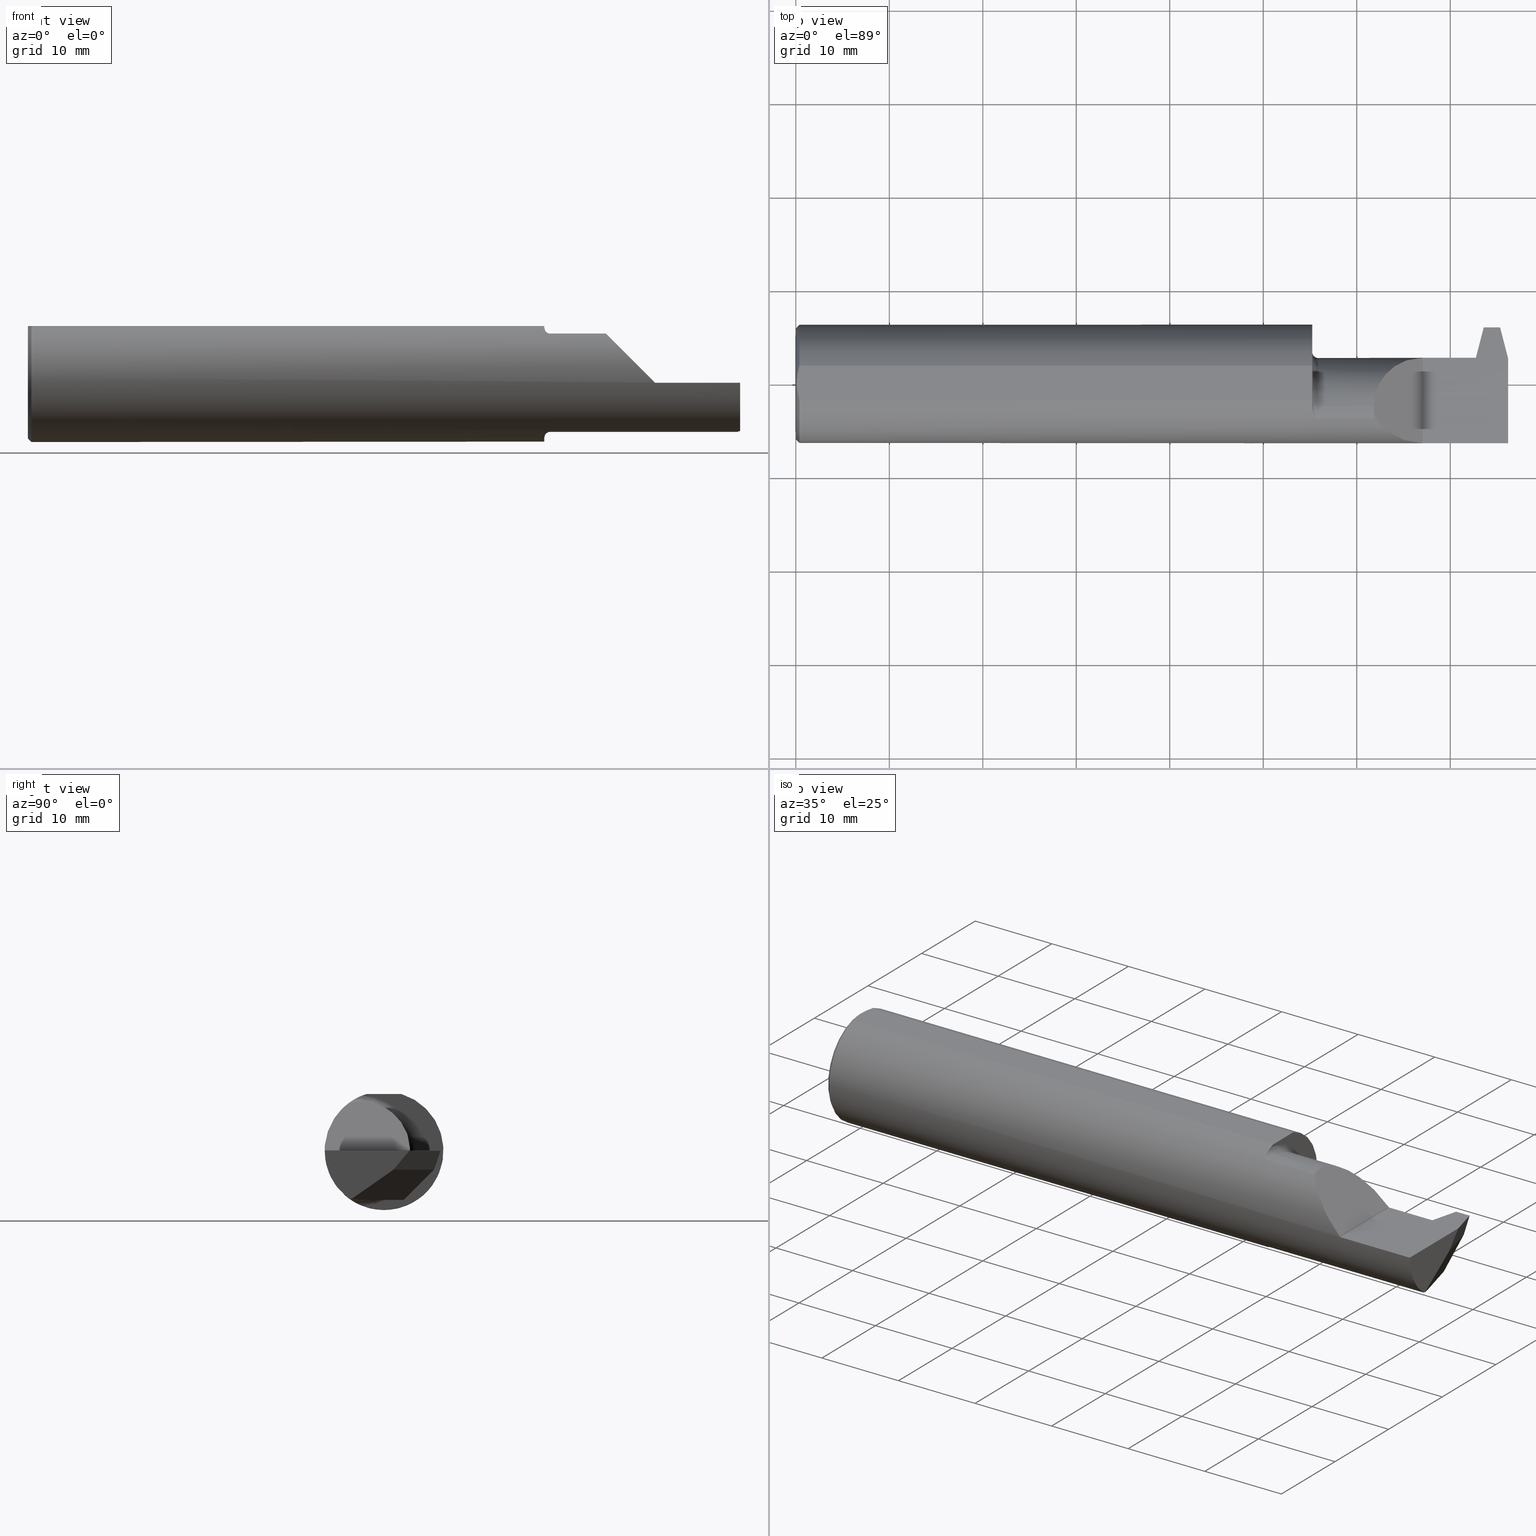
[diagram: canonical four-view strip — front | top / right | iso, engineering-drawing reading convention]
A machine part, canonical four-view strip (front | top / right | iso — engineering-drawing reading convention). The complete STEP part file that produces these views, byte-faithful:
ISO-10303-21;
HEADER;
FILE_DESCRIPTION (( 'STEP AP203' ),
    '1' );
FILE_NAME ('231090-FAT490750-5.STEP',
    '2024-05-24T15:41:46',
    ( '' ),
    ( '' ),
    'SwSTEP 2.0',
    'SolidWorks 2022',
    '' );
FILE_SCHEMA (( 'CONFIG_CONTROL_DESIGN' ));
ENDSEC;

DATA;
#1 = APPLICATION_CONTEXT ( 'configuration controlled 3d designs of mechanical parts and assemblies' ) ;
#2 = LOCAL_TIME ( 8, 41, 46.00000000000000000, #277 ) ;
#3 = DIRECTION ( 'NONE',  ( 0.000000000000000000, -0.7071067811865514585, 0.7071067811865435759 ) ) ;
#4 = CARTESIAN_POINT ( 'NONE',  ( 2.640000000000000124, 0.2999999999999999889, -6.123031769111886291E-17 ) ) ;
#5 = CARTESIAN_POINT ( 'NONE',  ( 2.899728941164849694, 0.0002279396741030530009, -0.2069999999999999618 ) ) ;
#6 = CARTESIAN_POINT ( 'NONE',  ( 2.175000000000000266, 0.1101499999999999979, -6.123031769111886291E-17 ) ) ;
#7 = CARTESIAN_POINT ( 'NONE',  ( 2.640000000000000124, 0.1101455977792765439, 0.001349999999999153743 ) ) ;
#8 = FACE_OUTER_BOUND ( 'NONE', #115, .T. ) ;
#9 = CARTESIAN_POINT ( 'NONE',  ( 2.434350000000000680, -0.1146400775661694377, 0.2070000000000000451 ) ) ;
#10 = VERTEX_POINT ( 'NONE', #357 ) ;
#11 = VECTOR ( 'NONE', #364, 39.37007874015748854 ) ;
#12 = ORGANIZATION ( 'UNSPECIFIED', 'UNSPECIFIED', '' ) ;
#13 = CARTESIAN_POINT ( 'NONE',  ( 2.175000000000000266, -0.09417762792835078500, -0.2314253821274770972 ) ) ;
#14 = LOCAL_TIME ( 8, 41, 46.00000000000000000, #133 ) ;
#15 = EDGE_CURVE ( 'NONE', #103, #456, #779, .T. ) ;
#16 = DIRECTION ( 'NONE',  ( 0.2503800040544308936, 0.9681476403781105189, -0.000000000000000000 ) ) ;
#17 = CARTESIAN_POINT ( 'NONE',  ( 2.795463962035231287, 0.8304646351436263396, -0.07999999999993467892 ) ) ;
#18 = CARTESIAN_POINT ( 'NONE',  ( 2.941708597587971319, 0.08360379093681984120, -0.2070000000000000173 ) ) ;
#19 = EDGE_LOOP ( 'NONE', ( #597, #546, #757 ) ) ;
#20 = VERTEX_POINT ( 'NONE', #53 ) ;
#21 = VERTEX_POINT ( 'NONE', #480 ) ;
#22 = ORIENTED_EDGE ( 'NONE', *, *, #477, .F. ) ;
#23 = PRODUCT_DEFINITION_SHAPE ( 'NONE', 'NONE',  #725 ) ;
#24 = AXIS2_PLACEMENT_3D ( 'NONE', #787, #136, #626 ) ;
#25 = DIRECTION ( 'NONE',  ( 1.000000000000000000, 0.000000000000000000, 0.000000000000000000 ) ) ;
#26 = ORIENTED_EDGE ( 'NONE', *, *, #153, .T. ) ;
#27 = AXIS2_PLACEMENT_3D ( 'NONE', #628, #920, #273 ) ;
#28 = ORIENTED_EDGE ( 'NONE', *, *, #146, .F. ) ;
#29 = VERTEX_POINT ( 'NONE', #417 ) ;
#30 = CARTESIAN_POINT ( 'NONE',  ( 0.000000000000000000, 2.967931517733600783E-17, 0.2348499999999984211 ) ) ;
#31 = LINE ( 'NONE', #612, #525 ) ;
#32 = ORIENTED_EDGE ( 'NONE', *, *, #517, .T. ) ;
#33 = EDGE_CURVE ( 'NONE', #351, #610, #286, .T. ) ;
#34 = ORIENTED_EDGE ( 'NONE', *, *, #347, .F. ) ;
#35 = CARTESIAN_POINT ( 'NONE',  ( 2.183603512678597092, -0.1369436784278610930, -0.2090374349053132075 ) ) ;
#36 = DATE_TIME_ROLE ( 'classification_date' ) ;
#37 = DIRECTION ( 'NONE',  ( 1.000000000000000000, 0.000000000000000000, 0.000000000000000000 ) ) ;
#38 = VERTEX_POINT ( 'NONE', #427 ) ;
#39 = ORIENTED_EDGE ( 'NONE', *, *, #575, .T. ) ;
#40 = DIRECTION ( 'NONE',  ( -1.000000000000000000, -0.000000000000000000, -0.000000000000000000 ) ) ;
#41 = CARTESIAN_POINT ( 'NONE',  ( 2.200000000000000178, -0.09684999999999996390, 0.2320000000000000118 ) ) ;
#42 = APPROVAL_ROLE ( '' ) ;
#43 = CARTESIAN_POINT ( 'NONE',  ( 2.963839195668921622, 0.2834708276858486364, -0.007132963250968999032 ) ) ;
#44 = VERTEX_POINT ( 'NONE', #411 ) ;
#45 = CARTESIAN_POINT ( 'NONE',  ( 2.892835643258365064, -1.619692994613003489E-08, -0.1884960009142943593 ) ) ;
#46 = CIRCLE ( 'NONE', #942, 0.2498499999999999888 ) ;
#47 = EDGE_CURVE ( 'NONE', #285, #610, #85, .T. ) ;
#48 = VECTOR ( 'NONE', #137, 39.37007874015748143 ) ;
#49 = CARTESIAN_POINT ( 'NONE',  ( 2.876905148354085728, 4.760531160170137888, 3.187995656012731605 ) ) ;
#50 = EDGE_CURVE ( 'NONE', #750, #338, #119, .T. ) ;
#51 = PLANE ( 'NONE',  #464 ) ;
#52 = VERTEX_POINT ( 'NONE', #702 ) ;
#53 = CARTESIAN_POINT ( 'NONE',  ( 2.907229123799224269, 0.2106037909368201066, -0.07999999999999835021 ) ) ;
#54 = CARTESIAN_POINT ( 'NONE',  ( 2.826410051084567776, 0.09266310188211816790, -0.08326934739156957588 ) ) ;
#55 = PERSON_AND_ORGANIZATION ( #803, #12 ) ;
#56 = VERTEX_POINT ( 'NONE', #275 ) ;
#57 = DIRECTION ( 'NONE',  ( 0.000000000000000000, 0.000000000000000000, -1.000000000000000000 ) ) ;
#58 = LINE ( 'NONE', #63, #263 ) ;
#59 = APPROVAL_ROLE ( '' ) ;
#60 = EDGE_CURVE ( 'NONE', #21, #519, #488, .T. ) ;
#61 = EDGE_LOOP ( 'NONE', ( #890, #467, #537, #901, #278 ) ) ;
#62 = ORIENTED_EDGE ( 'NONE', *, *, #388, .T. ) ;
#63 = CARTESIAN_POINT ( 'NONE',  ( 2.175000000000000266, -0.09685000000000000553, 0.2070000000000000173 ) ) ;
#64 = AXIS2_PLACEMENT_3D ( 'NONE', #726, #590, #441 ) ;
#65 = MANIFOLD_SOLID_BREP ( 'Cut-Sweep1', #576 ) ;
#66 = ORIENTED_EDGE ( 'NONE', *, *, #500, .F. ) ;
#67 = EDGE_CURVE ( 'NONE', #778, #810, #406, .T. ) ;
#68 = CARTESIAN_POINT ( 'NONE',  ( 2.175056834358316760, -0.09685000000000180964, 0.2303152187763536918 ) ) ;
#69 = DIRECTION ( 'NONE',  ( 0.9116190025285785259, 0.2357607042868696545, -0.3367011798954064883 ) ) ;
#70 = CARTESIAN_POINT ( 'NONE',  ( 2.188126455499453282, -0.1431912086441300413, 0.2047622941394795781 ) ) ;
#71 = DIRECTION ( 'NONE',  ( 0.000000000000000000, 0.000000000000000000, -1.000000000000000000 ) ) ;
#72 = PLANE ( 'NONE',  #929 ) ;
#73 = ADVANCED_FACE ( 'NONE', ( #643 ), #208, .T. ) ;
#74 = CIRCLE ( 'NONE', #696, 0.02500000000000000486 ) ;
#75 = CARTESIAN_POINT ( 'NONE',  ( 2.441154655244710980, -0.1494886164171400911, 0.2001953447552893839 ) ) ;
#76 = EDGE_CURVE ( 'NONE', #21, #885, #813, .T. ) ;
#77 = SECURITY_CLASSIFICATION ( '', '', #924 ) ;
#78 = DIRECTION ( 'NONE',  ( -0.000000000000000000, 0.8191520442889890230, 0.5735764363510500452 ) ) ;
#79 = CARTESIAN_POINT ( 'NONE',  ( 2.921291402412030003, 0.08360379093681984120, -0.2070000000000000451 ) ) ;
#80 = CARTESIAN_POINT ( 'NONE',  ( 2.897000000000000242, 0.2381499999999928951, -6.123031769111886291E-17 ) ) ;
#81 = EDGE_CURVE ( 'NONE', #908, #249, #562, .T. ) ;
#82 = CARTESIAN_POINT ( 'NONE',  ( 2.434350000000000680, -0.09685000000000000553, 0.2070000000000000173 ) ) ;
#83 = EDGE_CURVE ( 'NONE', #262, #380, #264, .T. ) ;
#84 = LINE ( 'NONE', #867, #198 ) ;
#85 =( BOUNDED_CURVE ( )  B_SPLINE_CURVE ( 3, ( #865, #567, #45, #474 ),
 .UNSPECIFIED., .F., .T. ) 
 B_SPLINE_CURVE_WITH_KNOTS ( ( 4, 4 ),
 ( 2.574758067495933389, 3.221287651673029551 ),
 .UNSPECIFIED. ) 
 CURVE ( )  GEOMETRIC_REPRESENTATION_ITEM ( )  RATIONAL_B_SPLINE_CURVE ( ( 1.000000000000000000, 0.9654689110704849364, 0.9654689110704849364, 1.000000000000000000 ) ) 
 REPRESENTATION_ITEM ( '' )  );
#86 = DIRECTION ( 'NONE',  ( 0.000000000000000000, 0.000000000000000000, 1.000000000000000000 ) ) ;
#87 = EDGE_LOOP ( 'NONE', ( #157, #904, #740, #321, #592 ) ) ;
#88 = CARTESIAN_POINT ( 'NONE',  ( 3.000000000000000444, -0.1494886164171398690, -0.2001953447552895227 ) ) ;
#89 = AXIS2_PLACEMENT_3D ( 'NONE', #800, #154, #150 ) ;
#90 = AXIS2_PLACEMENT_3D ( 'NONE', #761, #120, #186 ) ;
#91 = PRODUCT_DEFINITION_FORMATION_WITH_SPECIFIED_SOURCE ( 'ANY', '', #166, .NOT_KNOWN. ) ;
#92 = ORIENTED_EDGE ( 'NONE', *, *, #356, .F. ) ;
#93 = ORIENTED_EDGE ( 'NONE', *, *, #15, .T. ) ;
#94 = CARTESIAN_POINT ( 'NONE',  ( 2.434350000000000236, 0.02378168701430510151, 0.2070000000000000173 ) ) ;
#95 = DIRECTION ( 'NONE',  ( 1.000000000000000000, 0.000000000000000000, 0.000000000000000000 ) ) ;
#96 = ORIENTED_EDGE ( 'NONE', *, *, #50, .T. ) ;
#97 = DESIGN_CONTEXT ( 'detailed design', #1, 'design' ) ;
#98 = DIRECTION ( 'NONE',  ( 0.000000000000000000, 0.000000000000000000, -1.000000000000000000 ) ) ;
#99 = ORIENTED_EDGE ( 'NONE', *, *, #572, .F. ) ;
#100 = ORIENTED_EDGE ( 'NONE', *, *, #866, .F. ) ;
#101 = EDGE_CURVE ( 'NONE', #121, #187, #835, .T. ) ;
#102 = FACE_OUTER_BOUND ( 'NONE', #479, .T. ) ;
#103 = VERTEX_POINT ( 'NONE', #349 ) ;
#104 = AXIS2_PLACEMENT_3D ( 'NONE', #117, #40, #621 ) ;
#105 = ORIENTED_EDGE ( 'NONE', *, *, #60, .F. ) ;
#106 = FACE_OUTER_BOUND ( 'NONE', #87, .T. ) ;
#107 = DIRECTION ( 'NONE',  ( -0.7071067811865455743, 0.000000000000000000, 0.7071067811865493491 ) ) ;
#108 = ORIENTED_EDGE ( 'NONE', *, *, #658, .F. ) ;
#109 = ORIENTED_EDGE ( 'NONE', *, *, #313, .T. ) ;
#110 = LINE ( 'NONE', #176, #603 ) ;
#111 = APPROVAL_DATE_TIME ( #765, #508 ) ;
#112 = CC_DESIGN_DATE_AND_TIME_ASSIGNMENT ( #551, #284, ( #725 ) ) ;
#113 = EDGE_CURVE ( 'NONE', #52, #908, #637, .T. ) ;
#114 = DIRECTION ( 'NONE',  ( -1.000000000000000000, -0.000000000000000000, -0.000000000000000000 ) ) ;
#115 = EDGE_LOOP ( 'NONE', ( #671, #820, #164, #127 ) ) ;
#116 = LINE ( 'NONE', #404, #435 ) ;
#117 = CARTESIAN_POINT ( 'NONE',  ( 3.000000000000000444, 0.000000000000000000, 0.000000000000000000 ) ) ;
#118 = APPROVAL_ROLE ( '' ) ;
#119 =( BOUNDED_CURVE ( )  B_SPLINE_CURVE ( 3, ( #773, #421, #559, #199 ),
 .UNSPECIFIED., .F., .F. ) 
 B_SPLINE_CURVE_WITH_KNOTS ( ( 4, 4 ),
 ( 1.156804228221854913, 1.570796326794911879 ),
 .UNSPECIFIED. ) 
 CURVE ( )  GEOMETRIC_REPRESENTATION_ITEM ( )  RATIONAL_B_SPLINE_CURVE ( ( 1.000000000000000000, 0.9857684695413670983, 0.9857684695413670983, 1.000000000000000000 ) ) 
 REPRESENTATION_ITEM ( '' )  );
#120 = DIRECTION ( 'NONE',  ( -1.000000000000000000, -0.000000000000000000, -0.000000000000000000 ) ) ;
#121 = VERTEX_POINT ( 'NONE', #634 ) ;
#122 = CIRCLE ( 'NONE', #64, 0.2498499999999999888 ) ;
#123 = DIRECTION ( 'NONE',  ( -0.3464677099351656797, 0.000000000000000000, 0.9380618987957467514 ) ) ;
#124 = VECTOR ( 'NONE', #428, 39.37007874015748143 ) ;
#125 = CARTESIAN_POINT ( 'NONE',  ( 3.000000000000000444, -0.09685000000000000553, 0.000000000000000000 ) ) ;
#126 = PERSON_AND_ORGANIZATION ( #803, #12 ) ;
#127 = ORIENTED_EDGE ( 'NONE', *, *, #583, .F. ) ;
#128 = DIRECTION ( 'NONE',  ( 1.000000000000000000, 0.000000000000000000, 0.000000000000000000 ) ) ;
#129 = CARTESIAN_POINT ( 'NONE',  ( 2.175361372780717062, -0.1075719347965366363, -0.2258065311153257260 ) ) ;
#130 = PERSON_AND_ORGANIZATION ( #803, #12 ) ;
#131 = ORIENTED_EDGE ( 'NONE', *, *, #134, .T. ) ;
#132 = DIRECTION ( 'NONE',  ( 1.000000000000000000, 0.000000000000000000, 0.000000000000000000 ) ) ;
#133 = COORDINATED_UNIVERSAL_TIME_OFFSET ( 8, 0, .BEHIND. ) ;
#134 = EDGE_CURVE ( 'NONE', #416, #601, #116, .T. ) ;
#135 = ORIENTED_EDGE ( 'NONE', *, *, #704, .F. ) ;
#136 = DIRECTION ( 'NONE',  ( 1.000000000000000000, -0.000000000000000000, -0.000000000000000000 ) ) ;
#137 = DIRECTION ( 'NONE',  ( -1.000000000000000000, -0.000000000000000000, -0.000000000000000000 ) ) ;
#138 = CIRCLE ( 'NONE', #695, 0.2348499999999984211 ) ;
#139 = LOCAL_TIME ( 8, 41, 46.00000000000000000, #931 ) ;
#140 = DIRECTION ( 'NONE',  ( 0.1538794869635693174, 0.000000000000000000, -0.9880896232082536645 ) ) ;
#141 = DIRECTION ( 'NONE',  ( -0.000000000000000000, 5.769128905172341190E-16, 1.000000000000000000 ) ) ;
#142 = APPROVAL ( #476, 'UNSPECIFIED' ) ;
#143 = ADVANCED_FACE ( 'NONE', ( #203 ), #775, .T. ) ;
#144 = CARTESIAN_POINT ( 'NONE',  ( 2.640000000000000124, 0.1101499999999999702, -6.123031769111885058E-17 ) ) ;
#145 = DIRECTION ( 'NONE',  ( -1.000000000000000000, 0.000000000000000000, 0.000000000000000000 ) ) ;
#146 = EDGE_CURVE ( 'NONE', #38, #540, #915, .T. ) ;
#147 = CARTESIAN_POINT ( 'NONE',  ( 2.962896588987727675, 0.2501499999999999835, 0.000000000000000000 ) ) ;
#148 = CARTESIAN_POINT ( 'NONE',  ( 2.988377121087915089, -0.09685000000000006104, -0.2069999999999999341 ) ) ;
#149 = AXIS2_PLACEMENT_3D ( 'NONE', #229, #69, #220 ) ;
#150 = DIRECTION ( 'NONE',  ( 0.000000000000000000, -0.3255681544571563113, -0.9455185755993168462 ) ) ;
#151 = VECTOR ( 'NONE', #405, 39.37007874015748143 ) ;
#152 = DIRECTION ( 'NONE',  ( 0.9875741061282133915, 0.03229845173645597145, 0.1537992032504988393 ) ) ;
#153 = EDGE_CURVE ( 'NONE', #416, #44, #393, .T. ) ;
#154 = DIRECTION ( 'NONE',  ( -1.600052266976115523E-14, -0.9455185755993169572, 0.3255681544571563668 ) ) ;
#155 = CARTESIAN_POINT ( 'NONE',  ( 0.004000000000001628989, 0.02507688590673098211, 0.2388499999999999790 ) ) ;
#156 = FACE_OUTER_BOUND ( 'NONE', #473, .T. ) ;
#157 = ORIENTED_EDGE ( 'NONE', *, *, #812, .T. ) ;
#158 = ORIENTED_EDGE ( 'NONE', *, *, #550, .T. ) ;
#159 = EDGE_LOOP ( 'NONE', ( #833, #639, #710, #331, #100, #457 ) ) ;
#160 = DIRECTION ( 'NONE',  ( -1.000000000000000000, -0.000000000000000000, -0.000000000000000000 ) ) ;
#161 = AXIS2_PLACEMENT_3D ( 'NONE', #667, #450, #86 ) ;
#162 = VECTOR ( 'NONE', #891, 39.37007874015748854 ) ;
#163 = ORIENTED_EDGE ( 'NONE', *, *, #243, .F. ) ;
#164 = ORIENTED_EDGE ( 'NONE', *, *, #716, .F. ) ;
#165 = CARTESIAN_POINT ( 'NONE',  ( 2.863896949202449527, 0.1101499999999999840, 0.000000000000000000 ) ) ;
#166 = PRODUCT ( '231090-FAT490750-5', '231090-FAT490750-5', '', ( #627 ) ) ;
#167 = DIRECTION ( 'NONE',  ( 1.000000000000000000, 0.000000000000000000, 0.000000000000000000 ) ) ;
#168 = EDGE_LOOP ( 'NONE', ( #735, #163, #669, #570, #746 ) ) ;
#169 = ORIENTED_EDGE ( 'NONE', *, *, #113, .T. ) ;
#170 = EDGE_CURVE ( 'NONE', #786, #903, #84, .T. ) ;
#171 = ORIENTED_EDGE ( 'NONE', *, *, #806, .T. ) ;
#172 = LINE ( 'NONE', #458, #880 ) ;
#173 = LINE ( 'NONE', #241, #894 ) ;
#174 = ORIENTED_EDGE ( 'NONE', *, *, #877, .T. ) ;
#175 = EDGE_LOOP ( 'NONE', ( #600, #698, #453, #409, #34, #932, #553, #180, #529, #530, #384, #274 ) ) ;
#176 = CARTESIAN_POINT ( 'NONE',  ( 2.850128570000003414, 0.2106037909368215499, -0.07999999999999686529 ) ) ;
#177 = EDGE_LOOP ( 'NONE', ( #425, #66, #461, #327, #244, #22 ) ) ;
#178 = VECTOR ( 'NONE', #280, 39.37007874015748854 ) ;
#179 = FACE_OUTER_BOUND ( 'NONE', #921, .T. ) ;
#180 = ORIENTED_EDGE ( 'NONE', *, *, #50, .F. ) ;
#181 = CC_DESIGN_APPROVAL ( #508, ( #725 ) ) ;
#182 = ORIENTED_EDGE ( 'NONE', *, *, #224, .F. ) ;
#183 = CARTESIAN_POINT ( 'NONE',  ( 2.188098364138955532, -0.1431579111149089145, -0.2047855815810830926 ) ) ;
#184 = CC_DESIGN_DATE_AND_TIME_ASSIGNMENT ( #490, #36, ( #77 ) ) ;
#185 = ADVANCED_FACE ( 'NONE', ( #659 ), #718, .T. ) ;
#186 = DIRECTION ( 'NONE',  ( 0.000000000000000000, 0.000000000000000000, 1.000000000000000000 ) ) ;
#187 = VERTEX_POINT ( 'NONE', #733 ) ;
#188 = DIRECTION ( 'NONE',  ( -1.000000000000000000, -0.000000000000000000, -0.000000000000000000 ) ) ;
#189 = CARTESIAN_POINT ( 'NONE',  ( 0.01500000000000188856, 0.000000000000000000, -0.2498499999999999888 ) ) ;
#190 = PERSON_AND_ORGANIZATION ( #803, #12 ) ;
#191 = LINE ( 'NONE', #822, #239 ) ;
#192 =( BOUNDED_CURVE ( )  B_SPLINE_CURVE ( 3, ( #301, #9, #943, #75 ),
 .UNSPECIFIED., .F., .T. ) 
 B_SPLINE_CURVE_WITH_KNOTS ( ( 4, 4 ),
 ( 0.000000000000000000, 0.2571164291075390129 ),
 .UNSPECIFIED. ) 
 CURVE ( )  GEOMETRIC_REPRESENTATION_ITEM ( )  RATIONAL_B_SPLINE_CURVE ( ( 1.000000000000000000, 0.9944985117787172868, 0.9944985117787172868, 1.000000000000000000 ) ) 
 REPRESENTATION_ITEM ( '' )  );
#193 = ORIENTED_EDGE ( 'NONE', *, *, #81, .F. ) ;
#194 = ORIENTED_EDGE ( 'NONE', *, *, #76, .F. ) ;
#195 = DIRECTION ( 'NONE',  ( 0.000000000000000000, 0.000000000000000000, 1.000000000000000000 ) ) ;
#196 = DIRECTION ( 'NONE',  ( 0.000000000000000000, 0.000000000000000000, 1.000000000000000000 ) ) ;
#197 = ORIENTED_EDGE ( 'NONE', *, *, #656, .F. ) ;
#198 = VECTOR ( 'NONE', #78, 39.37007874015748143 ) ;
#199 = CARTESIAN_POINT ( 'NONE',  ( 2.843896949202449953, 0.1101499999999999702, 0.000000000000000000 ) ) ;
#200 = CIRCLE ( 'NONE', #390, 0.2069999999999999618 ) ;
#201 = CARTESIAN_POINT ( 'NONE',  ( 2.863896949202449527, 0.1101499999999999840, -6.842741670802547496E-19 ) ) ;
#202 = ORIENTED_EDGE ( 'NONE', *, *, #243, .T. ) ;
#203 = FACE_OUTER_BOUND ( 'NONE', #168, .T. ) ;
#204 = CARTESIAN_POINT ( 'NONE',  ( 2.995695463954409110, -0.1233308849821205533, -0.2057276898443770319 ) ) ;
#205 = EDGE_CURVE ( 'NONE', #925, #44, #795, .T. ) ;
#206 = B_SPLINE_CURVE_WITH_KNOTS ( 'NONE', 3,
 ( #780, #129, #703, #830, #35, #183, #446, #522, #736, #668 ),
 .UNSPECIFIED., .F., .F.,
 ( 4, 2, 2, 2, 4 ),
 ( 0.0001090155944137358965, 0.0009865223614607978014, 0.001425275744984329587, 0.001644652436746094504, 0.001864029128507859422 ),
 .UNSPECIFIED. ) ;
#207 = ORIENTED_EDGE ( 'NONE', *, *, #256, .T. ) ;
#208 = PLANE ( 'NONE',  #678 ) ;
#209 = CARTESIAN_POINT ( 'NONE',  ( 2.175000000000000266, -0.09685000000000000553, 0.000000000000000000 ) ) ;
#210 = UNCERTAINTY_MEASURE_WITH_UNIT (LENGTH_MEASURE( 1.000000000000000082E-05 ), #782, 'distance_accuracy_value', 'NONE');
#211 = CARTESIAN_POINT ( 'NONE',  ( 2.902903859512527607, -0.09685000000000011655, -0.2069999999999999618 ) ) ;
#212 = AXIS2_PLACEMENT_3D ( 'NONE', #722, #308, #657 ) ;
#213 = TOROIDAL_SURFACE ( 'NONE', #870, 0.2320000000000000118, 0.02500000000000000139 ) ;
#214 = CC_DESIGN_PERSON_AND_ORGANIZATION_ASSIGNMENT ( #126, #632, ( #91 ) ) ;
#215 = ADVANCED_FACE ( 'NONE', ( #8 ), #443, .F. ) ;
#216 = ADVANCED_FACE ( 'NONE', ( #874 ), #652, .T. ) ;
#217 = LINE ( 'NONE', #147, #11 ) ;
#218 = DIRECTION ( 'NONE',  ( 1.000000000000000000, 0.000000000000000000, 0.000000000000000000 ) ) ;
#219 = LINE ( 'NONE', #17, #723 ) ;
#220 = DIRECTION ( 'NONE',  ( -0.3464677099351625156, 0.000000000000000000, -0.9380618987957479726 ) ) ;
#221 = CARTESIAN_POINT ( 'NONE',  ( 2.640000000000000124, 0.2999999999999999889, -6.123031769111886291E-17 ) ) ;
#222 = DIRECTION ( 'NONE',  ( -0.000000000000000000, 0.000000000000000000, 1.000000000000000000 ) ) ;
#223 = DIRECTION ( 'NONE',  ( 0.000000000000000000, -0.8191520442889890230, -0.5735764363510501562 ) ) ;
#224 = EDGE_CURVE ( 'NONE', #29, #452, #928, .T. ) ;
#225 = CIRCLE ( 'NONE', #352, 0.2320000000000000118 ) ;
#226 = DIRECTION ( 'NONE',  ( -1.000000000000000000, 0.000000000000000000, -0.000000000000000000 ) ) ;
#227 = AXIS2_PLACEMENT_3D ( 'NONE', #328, #536, #690 ) ;
#228 = APPROVAL_PERSON_ORGANIZATION ( #419, #142, #59 ) ;
#229 = CARTESIAN_POINT ( 'NONE',  ( 2.935081469452308411, 0.8665721776455894698, 0.3232974061439795599 ) ) ;
#230 = FACE_OUTER_BOUND ( 'NONE', #175, .T. ) ;
#231 = EDGE_CURVE ( 'NONE', #925, #752, #138, .T. ) ;
#232 = CARTESIAN_POINT ( 'NONE',  ( 2.175056834358316316, -0.09684999999998002151, -0.2303152187763627956 ) ) ;
#233 = ORIENTED_EDGE ( 'NONE', *, *, #60, .T. ) ;
#234 = CARTESIAN_POINT ( 'NONE',  ( 2.200000000000000178, -0.09685000000000000553, 0.000000000000000000 ) ) ;
#235 = VERTEX_POINT ( 'NONE', #871 ) ;
#236 = VERTEX_POINT ( 'NONE', #144 ) ;
#237 = ORIENTED_EDGE ( 'NONE', *, *, #290, .F. ) ;
#238 = DIRECTION ( 'NONE',  ( 0.2013133534504518707, 0.2013133534504513988, 0.9586166425871537333 ) ) ;
#239 = VECTOR ( 'NONE', #167, 39.37007874015748143 ) ;
#240 = EDGE_CURVE ( 'NONE', #452, #827, #225, .T. ) ;
#241 = CARTESIAN_POINT ( 'NONE',  ( 3.000000000000000444, -0.07331916529803135518, 0.2388499999999998957 ) ) ;
#242 = EDGE_LOOP ( 'NONE', ( #96, #248 ) ) ;
#243 = EDGE_CURVE ( 'NONE', #752, #925, #879, .T. ) ;
#244 = ORIENTED_EDGE ( 'NONE', *, *, #240, .F. ) ;
#245 = VERTEX_POINT ( 'NONE', #80 ) ;
#246 = FACE_OUTER_BOUND ( 'NONE', #814, .T. ) ;
#247 = DIRECTION ( 'NONE',  ( 0.000000000000000000, 0.000000000000000000, -1.000000000000000000 ) ) ;
#248 = ORIENTED_EDGE ( 'NONE', *, *, #917, .F. ) ;
#249 = VERTEX_POINT ( 'NONE', #431 ) ;
#250 = CARTESIAN_POINT ( 'NONE',  ( 0.007978205860499350960, -0.04939097055354213506, 0.2388499999999999790 ) ) ;
#251 = ORIENTED_EDGE ( 'NONE', *, *, #583, .T. ) ;
#252 =( LENGTH_UNIT ( ) NAMED_UNIT ( * ) SI_UNIT ( $, .METRE. ) );
#253 = ADVANCED_FACE ( 'NONE', ( #288 ), #361, .F. ) ;
#254 = DIRECTION ( 'NONE',  ( 1.000000000000000000, 0.000000000000000000, 0.000000000000000000 ) ) ;
#255 = VERTEX_POINT ( 'NONE', #302 ) ;
#256 = EDGE_CURVE ( 'NONE', #827, #601, #122, .T. ) ;
#257 = CARTESIAN_POINT ( 'NONE',  ( 2.488914555052665456, -0.2134487348307804455, 0.1524354449473348527 ) ) ;
#258 = PERSON_AND_ORGANIZATION_ROLE ( 'design_owner' ) ;
#259 = B_SPLINE_CURVE_WITH_KNOTS ( 'NONE', 3,
 ( #935, #571, #360, #422, #70, #507, #646, #636, #862, #68 ),
 .UNSPECIFIED., .F., .F.,
 ( 4, 2, 2, 2, 4 ),
 ( 0.000000000000000000, 0.0002232479344833600363, 0.0004464958689667200727, 0.0008929917379334389527, 0.001785983475866874436 ),
 .UNSPECIFIED. ) ;
#260 = VECTOR ( 'NONE', #875, 39.37007874015748143 ) ;
#261 = DIRECTION ( 'NONE',  ( 0.000000000000000000, 0.000000000000000000, 1.000000000000000000 ) ) ;
#262 = VERTEX_POINT ( 'NONE', #940 ) ;
#263 = VECTOR ( 'NONE', #287, 39.37007874015748143 ) ;
#264 = LINE ( 'NONE', #784, #513 ) ;
#265 = CARTESIAN_POINT ( 'NONE',  ( 2.640000000000000124, 0.2999999999999999889, 0.001349999999999153743 ) ) ;
#266 = DIRECTION ( 'NONE',  ( 0.000000000000000000, 0.000000000000000000, 1.000000000000000000 ) ) ;
#267 = CALENDAR_DATE ( 2024, 24, 5 ) ;
#268 = CARTESIAN_POINT ( 'NONE',  ( 2.441154655244710980, -0.1494886164171400911, 0.2001953447552893839 ) ) ;
#269 = ORIENTED_EDGE ( 'NONE', *, *, #356, .T. ) ;
#270 = CARTESIAN_POINT ( 'NONE',  ( 2.927918530547692466, 4.957785273113227476, 3.187995656012731605 ) ) ;
#271 = CARTESIAN_POINT ( 'NONE',  ( 3.000000000000000444, -0.1363579360798511386, -0.2031947907469834613 ) ) ;
#272 = APPROVAL_STATUS ( 'not_yet_approved' ) ;
#273 = DIRECTION ( 'NONE',  ( 0.000000000000000000, -0.2055210070593990190, -0.9786527043120508695 ) ) ;
#274 = ORIENTED_EDGE ( 'NONE', *, *, #47, .T. ) ;
#275 = CARTESIAN_POINT ( 'NONE',  ( 2.640000000000000124, -0.2498463527850666721, 0.001349999999999153743 ) ) ;
#276 = LINE ( 'NONE', #470, #739 ) ;
#277 = COORDINATED_UNIVERSAL_TIME_OFFSET ( 8, 0, .BEHIND. ) ;
#278 = ORIENTED_EDGE ( 'NONE', *, *, #582, .F. ) ;
#279 = AXIS2_PLACEMENT_3D ( 'NONE', #630, #922, #57 ) ;
#280 = DIRECTION ( 'NONE',  ( -0.1434307879605599689, 0.5852017854430175969, 0.7981017976294234595 ) ) ;
#281 = VECTOR ( 'NONE', #309, 39.37007874015748854 ) ;
#282 = EDGE_CURVE ( 'NONE', #751, #540, #426, .T. ) ;
#283 = DIRECTION ( 'NONE',  ( -0.9786527043120508695, 3.055463344878836037E-15, 0.2055210070593990190 ) ) ;
#284 = DATE_TIME_ROLE ( 'creation_date' ) ;
#285 = VERTEX_POINT ( 'NONE', #367 ) ;
#286 = LINE ( 'NONE', #712, #178 ) ;
#287 = DIRECTION ( 'NONE',  ( -1.000000000000000000, -0.000000000000000000, -0.000000000000000000 ) ) ;
#288 = FACE_OUTER_BOUND ( 'NONE', #629, .T. ) ;
#289 = CARTESIAN_POINT ( 'NONE',  ( 2.640000000000000124, -0.2498499999999999610, -6.123031769111885058E-17 ) ) ;
#290 = EDGE_CURVE ( 'NONE', #103, #235, #217, .T. ) ;
#291 = CARTESIAN_POINT ( 'NONE',  ( 0.000000000000000000, 0.000000000000000000, 0.000000000000000000 ) ) ;
#292 = AXIS2_PLACEMENT_3D ( 'NONE', #512, #509, #720 ) ;
#293 = CARTESIAN_POINT ( 'NONE',  ( 2.843896949202449953, 0.1101499999999999702, 0.000000000000000000 ) ) ;
#294 = VECTOR ( 'NONE', #516, 39.37007874015748143 ) ;
#295 = VECTOR ( 'NONE', #455, 39.37007874015748143 ) ;
#296 = DIRECTION ( 'NONE',  ( -1.000000000000000000, -0.000000000000000000, -0.000000000000000000 ) ) ;
#297 = CARTESIAN_POINT ( 'NONE',  ( 2.856905148354085711, 4.760531160170137888, 3.187995656012731605 ) ) ;
#298 = CARTESIAN_POINT ( 'NONE',  ( 0.01500000000000188856, 0.000000000000000000, 0.000000000000000000 ) ) ;
#299 = FACE_OUTER_BOUND ( 'NONE', #852, .T. ) ;
#300 = DIRECTION ( 'NONE',  ( 0.000000000000000000, 0.000000000000000000, -1.000000000000000000 ) ) ;
#301 = CARTESIAN_POINT ( 'NONE',  ( 2.434350000000000680, -0.09685000000000000553, 0.2070000000000000173 ) ) ;
#302 = CARTESIAN_POINT ( 'NONE',  ( 2.175056834358316760, -0.09685000000000180964, 0.2303152187763536918 ) ) ;
#303 = EDGE_CURVE ( 'NONE', #236, #338, #655, .T. ) ;
#304 = AXIS2_PLACEMENT_3D ( 'NONE', #434, #3, #502 ) ;
#305 = FACE_OUTER_BOUND ( 'NONE', #633, .T. ) ;
#306 = CC_DESIGN_SECURITY_CLASSIFICATION ( #77, ( #91 ) ) ;
#307 = CARTESIAN_POINT ( 'NONE',  ( 3.000000000000000444, 0.2999999999999999889, -6.123031769111886291E-17 ) ) ;
#308 = DIRECTION ( 'NONE',  ( 1.000000000000000000, -0.000000000000000000, -0.000000000000000000 ) ) ;
#309 = DIRECTION ( 'NONE',  ( 0.07805664651022492517, -0.7049493456751224629, -0.7049493456751303455 ) ) ;
#310 = ORIENTED_EDGE ( 'NONE', *, *, #607, .F. ) ;
#311 = EDGE_CURVE ( 'NONE', #827, #249, #688, .T. ) ;
#312 =( BOUNDED_CURVE ( )  B_SPLINE_CURVE ( 3, ( #148, #436, #204, #493 ),
 .UNSPECIFIED., .F., .T. ) 
 B_SPLINE_CURVE_WITH_KNOTS ( ( 4, 4 ),
 ( 0.6108652381980211876, 0.8029030024377840080 ),
 .UNSPECIFIED. ) 
 CURVE ( )  GEOMETRIC_REPRESENTATION_ITEM ( )  RATIONAL_B_SPLINE_CURVE ( ( 1.000000000000000000, 0.9969291518527063634, 0.9969291518527063634, 1.000000000000000000 ) ) 
 REPRESENTATION_ITEM ( '' )  );
#313 = EDGE_CURVE ( 'NONE', #21, #235, #662, .T. ) ;
#314 = VERTEX_POINT ( 'NONE', #79 ) ;
#315 = ORIENTED_EDGE ( 'NONE', *, *, #854, .T. ) ;
#316 = AXIS2_PLACEMENT_3D ( 'NONE', #793, #938, #71 ) ;
#317 = CARTESIAN_POINT ( 'NONE',  ( 2.897984886198646137, 0.2940908421892632352, 0.003487051252445713765 ) ) ;
#318 = VECTOR ( 'NONE', #483, 39.37007874015748854 ) ;
#319 = DIRECTION ( 'NONE',  ( 0.000000000000000000, 0.000000000000000000, -1.000000000000000000 ) ) ;
#320 = EDGE_LOOP ( 'NONE', ( #772, #614, #823 ) ) ;
#321 = ORIENTED_EDGE ( 'NONE', *, *, #313, .F. ) ;
#322 = DIRECTION ( 'NONE',  ( 0.000000000000000000, -0.8191520442889890230, -0.5735764363510501562 ) ) ;
#323 = PLANE ( 'NONE',  #944 ) ;
#324 = EDGE_CURVE ( 'NONE', #38, #397, #648, .T. ) ;
#325 = CARTESIAN_POINT ( 'NONE',  ( 3.000000000000000444, 0.08360379093681982732, -0.2070000000000000451 ) ) ;
#326 = ORIENTED_EDGE ( 'NONE', *, *, #747, .T. ) ;
#327 = ORIENTED_EDGE ( 'NONE', *, *, #311, .F. ) ;
#328 = CARTESIAN_POINT ( 'NONE',  ( 0.000000000000000000, 0.1000000000000000056, 0.2388499999999999790 ) ) ;
#329 = DATE_AND_TIME ( #423, #14 ) ;
#330 = CYLINDRICAL_SURFACE ( 'NONE', #623, 0.2070000000000000173 ) ;
#331 = ORIENTED_EDGE ( 'NONE', *, *, #905, .T. ) ;
#332 = EDGE_LOOP ( 'NONE', ( #93, #326, #269, #445 ) ) ;
#333 = EDGE_CURVE ( 'NONE', #262, #893, #730, .T. ) ;
#334 = CARTESIAN_POINT ( 'NONE',  ( 2.175000000000000266, 0.1000000000000000056, 0.2388499999999999790 ) ) ;
#335 = DIRECTION ( 'NONE',  ( 0.000000000000000000, 1.000000000000000000, -1.224646799147353207E-16 ) ) ;
#336 = LENGTH_MEASURE_WITH_UNIT ( LENGTH_MEASURE( 0.02539999999999999897 ), #252 );
#337 = AXIS2_PLACEMENT_3D ( 'NONE', #234, #444, #521 ) ;
#338 = VERTEX_POINT ( 'NONE', #369 ) ;
#339 = VECTOR ( 'NONE', #489, 39.37007874015748143 ) ;
#340 = DIRECTION ( 'NONE',  ( 1.000000000000000000, 0.000000000000000000, 0.000000000000000000 ) ) ;
#341 = DIRECTION ( 'NONE',  ( 0.000000000000000000, 0.000000000000000000, -1.000000000000000000 ) ) ;
#342 = APPLICATION_PROTOCOL_DEFINITION ( 'international standard', 'config_control_design', 1994, #666 ) ;
#343 = DIRECTION ( 'NONE',  ( 0.000000000000000000, -0.6426264403010703008, -0.7661796514042739092 ) ) ;
#344 = ORIENTED_EDGE ( 'NONE', *, *, #575, .F. ) ;
#345 = CARTESIAN_POINT ( 'NONE',  ( 0.004000000000001630723, -8.838795635097487697E-18, 0.2388499999999999790 ) ) ;
#346 = COORDINATED_UNIVERSAL_TIME_OFFSET ( 8, 0, .BEHIND. ) ;
#347 = EDGE_CURVE ( 'NONE', #385, #10, #368, .T. ) ;
#348 = ORIENTED_EDGE ( 'NONE', *, *, #33, .F. ) ;
#349 = CARTESIAN_POINT ( 'NONE',  ( 2.966000000000000636, 0.2381499999999917294, 0.000000000000000000 ) ) ;
#350 = DIRECTION ( 'NONE',  ( 0.2055210070593990190, 0.000000000000000000, 0.9786527043120508695 ) ) ;
#351 = VERTEX_POINT ( 'NONE', #5 ) ;
#352 = AXIS2_PLACEMENT_3D ( 'NONE', #370, #359, #798 ) ;
#353 = DIRECTION ( 'NONE',  ( -0.1200238624775791241, -0.3232146245633296111, -0.9386834284807360484 ) ) ;
#354 = VECTOR ( 'NONE', #673, 39.37007874015748143 ) ;
#355 = LINE ( 'NONE', #4, #124 ) ;
#356 = EDGE_CURVE ( 'NONE', #20, #245, #808, .T. ) ;
#357 = CARTESIAN_POINT ( 'NONE',  ( 2.434350000000000680, -0.09685000000000000553, 0.2070000000000000173 ) ) ;
#358 = CARTESIAN_POINT ( 'NONE',  ( 2.175056834358316760, -0.09685000000000180964, 0.2303152187763536918 ) ) ;
#359 = DIRECTION ( 'NONE',  ( -1.000000000000000000, -0.000000000000000000, -0.000000000000000000 ) ) ;
#360 = CARTESIAN_POINT ( 'NONE',  ( 2.194274813964109061, -0.1483055201436096204, 0.2010828477691847527 ) ) ;
#361 = PLANE ( 'NONE',  #790 ) ;
#362 = DIRECTION ( 'NONE',  ( 0.000000000000000000, -1.000000000000000000, 5.769128905172341190E-16 ) ) ;
#363 = AXIS2_PLACEMENT_3D ( 'NONE', #459, #254, #247 ) ;
#364 = DIRECTION ( 'NONE',  ( 0.2503800040544340577, -0.9681476403781096307, 0.000000000000000000 ) ) ;
#365 = CARTESIAN_POINT ( 'NONE',  ( 2.931712946219819926, 0.1222541069740935016, -0.2070000000000000728 ) ) ;
#366 = ADVANCED_FACE ( 'NONE', ( #595 ), #660, .F. ) ;
#367 = CARTESIAN_POINT ( 'NONE',  ( 2.876905148354085728, -0.08773859972320476042, -0.2067993771388028923 ) ) ;
#368 =( BOUNDED_CURVE ( )  B_SPLINE_CURVE ( 3, ( #581, #887, #94, #82 ),
 .UNSPECIFIED., .F., .T. ) 
 B_SPLINE_CURVE_WITH_KNOTS ( ( 4, 4 ),
 ( 4.718910765747615699, 6.283185307179586232 ),
 .UNSPECIFIED. ) 
 CURVE ( )  GEOMETRIC_REPRESENTATION_ITEM ( )  RATIONAL_B_SPLINE_CURVE ( ( 1.000000000000000000, 0.8062725446327774215, 0.8062725446327774215, 1.000000000000000000 ) ) 
 REPRESENTATION_ITEM ( '' )  );
#369 = CARTESIAN_POINT ( 'NONE',  ( 2.843896949202449953, 0.1101499999999999702, 0.000000000000000000 ) ) ;
#370 = CARTESIAN_POINT ( 'NONE',  ( 2.175000000000000266, -0.09685000000000000553, 0.000000000000000000 ) ) ;
#371 = VECTOR ( 'NONE', #588, 39.37007874015748854 ) ;
#372 = CARTESIAN_POINT ( 'NONE',  ( 2.876905148354086617, 0.09334967799375123998, -0.07999999999997493838 ) ) ;
#373 = VECTOR ( 'NONE', #16, 39.37007874015748854 ) ;
#374 = CARTESIAN_POINT ( 'NONE',  ( 2.895272537164931048, 0.1364892450975574989, -0.2070000000000000728 ) ) ;
#375 = ORIENTED_EDGE ( 'NONE', *, *, #886, .F. ) ;
#376 = ADVANCED_FACE ( 'NONE', ( #156 ), #878, .F. ) ;
#377 = EDGE_LOOP ( 'NONE', ( #394, #845, #883, #670, #744, #687 ) ) ;
#378 = EDGE_CURVE ( 'NONE', #751, #750, #873, .T. ) ;
#379 = DIRECTION ( 'NONE',  ( 0.000000000000000000, 0.000000000000000000, -1.000000000000000000 ) ) ;
#380 = VERTEX_POINT ( 'NONE', #734 ) ;
#381 = ORIENTED_EDGE ( 'NONE', *, *, #67, .T. ) ;
#382 = B_SPLINE_CURVE_WITH_KNOTS ( 'NONE', 3,
 ( #345, #555, #250, #609 ),
 .UNSPECIFIED., .F., .F.,
 ( 4, 4 ),
 ( 0.007106848166584502080, 0.008972081732692345837 ),
 .UNSPECIFIED. ) ;
#383 = DIRECTION ( 'NONE',  ( -0.7071067811865494601, 0.000000000000000000, -0.7071067811865456854 ) ) ;
#384 = ORIENTED_EDGE ( 'NONE', *, *, #656, .T. ) ;
#385 = VERTEX_POINT ( 'NONE', #7 ) ;
#386 = EDGE_LOOP ( 'NONE', ( #99, #824, #864, #762, #618 ) ) ;
#387 = VECTOR ( 'NONE', #223, 39.37007874015748143 ) ;
#388 = EDGE_CURVE ( 'NONE', #10, #682, #192, .T. ) ;
#389 = CARTESIAN_POINT ( 'NONE',  ( 2.175000000000000266, 0.3101499999999999813, 0.000000000000000000 ) ) ;
#390 = AXIS2_PLACEMENT_3D ( 'NONE', #125, #541, #195 ) ;
#391 = DIRECTION ( 'NONE',  ( 1.000000000000000000, 0.000000000000000000, 0.000000000000000000 ) ) ;
#392 = ORIENTED_EDGE ( 'NONE', *, *, #727, .T. ) ;
#393 = B_SPLINE_CURVE_WITH_KNOTS ( 'NONE', 3,
 ( #804, #506, #155, #876 ),
 .UNSPECIFIED., .F., .F.,
 ( 4, 4 ),
 ( 0.005234717643982266660, 0.007106848166584502080 ),
 .UNSPECIFIED. ) ;
#394 = ORIENTED_EDGE ( 'NONE', *, *, #816, .T. ) ;
#395 = LINE ( 'NONE', #759, #318 ) ;
#396 = FACE_OUTER_BOUND ( 'NONE', #177, .T. ) ;
#397 = VERTEX_POINT ( 'NONE', #372 ) ;
#398 = EDGE_CURVE ( 'NONE', #810, #416, #622, .T. ) ;
#399 = CARTESIAN_POINT ( 'NONE',  ( 2.856905148354085711, 0.09266310188211769605, -0.08326934739157200449 ) ) ;
#400 = COORDINATED_UNIVERSAL_TIME_OFFSET ( 8, 0, .BEHIND. ) ;
#401 = LINE ( 'NONE', #43, #437 ) ;
#402 = ORIENTED_EDGE ( 'NONE', *, *, #388, .F. ) ;
#403 = ADVANCED_FACE ( 'NONE', ( #305 ), #591, .F. ) ;
#404 = CARTESIAN_POINT ( 'NONE',  ( 3.000000000000000444, 0.07331916529803135518, 0.2388499999999998957 ) ) ;
#405 = DIRECTION ( 'NONE',  ( -0.000000000000000000, 0.2055210070593990190, 0.9786527043120508695 ) ) ;
#406 = CIRCLE ( 'NONE', #909, 0.2498499999999999888 ) ;
#407 = AXIS2_PLACEMENT_3D ( 'NONE', #221, #939, #145 ) ;
#408 = CARTESIAN_POINT ( 'NONE',  ( 2.200000000000000178, -0.09685000000000000553, 0.000000000000000000 ) ) ;
#409 = ORIENTED_EDGE ( 'NONE', *, *, #510, .F. ) ;
#410 = AXIS2_PLACEMENT_3D ( 'NONE', #552, #383, #107 ) ;
#411 = CARTESIAN_POINT ( 'NONE',  ( 0.004000000000001630723, -8.838795635097487697E-18, 0.2388499999999999790 ) ) ;
#412 = ADVANCED_FACE ( 'NONE', ( #299 ), #485, .F. ) ;
#413 = LINE ( 'NONE', #265, #563 ) ;
#414 = ADVANCED_FACE ( 'NONE', ( #230 ), #586, .T. ) ;
#415 =( NAMED_UNIT ( * ) SI_UNIT ( $, .STERADIAN. ) SOLID_ANGLE_UNIT ( ) );
#416 = VERTEX_POINT ( 'NONE', #511 ) ;
#417 = CARTESIAN_POINT ( 'NONE',  ( 2.175000000000000266, -0.07331916529803114702, 0.2388499999999999790 ) ) ;
#418 = CARTESIAN_POINT ( 'NONE',  ( 2.441154655244710980, -0.1494886164171400911, 0.2001953447552893839 ) ) ;
#419 = PERSON_AND_ORGANIZATION ( #803, #12 ) ;
#420 = ORIENTED_EDGE ( 'NONE', *, *, #333, .F. ) ;
#421 = CARTESIAN_POINT ( 'NONE',  ( 2.831941729141266073, 0.1042368812308372278, -0.05692852818758704220 ) ) ;
#422 = CARTESIAN_POINT ( 'NONE',  ( 2.189875278575876827, -0.1451430425960587578, 0.2033773245914853312 ) ) ;
#423 = CALENDAR_DATE ( 2024, 24, 5 ) ;
#424 = EDGE_CURVE ( 'NONE', #903, #456, #219, .T. ) ;
#425 = ORIENTED_EDGE ( 'NONE', *, *, #447, .F. ) ;
#426 = CIRCLE ( 'NONE', #602, 0.2070000000000000173 ) ;
#427 = CARTESIAN_POINT ( 'NONE',  ( 2.856905148354085711, 0.09334967799372907715, -0.07999999999999039824 ) ) ;
#428 = DIRECTION ( 'NONE',  ( -0.000000000000000000, 1.000000000000000000, -0.000000000000000000 ) ) ;
#429 = CARTESIAN_POINT ( 'NONE',  ( 2.856905148354085711, -0.09685000000000000553, 0.000000000000000000 ) ) ;
#430 = CARTESIAN_POINT ( 'NONE',  ( 2.897254669181323461, -0.002478446436580225565, -0.1905438742845577682 ) ) ;
#431 = CARTESIAN_POINT ( 'NONE',  ( 2.175056834358316316, -0.09684999999998002151, -0.2303152187763627956 ) ) ;
#432 = FACE_OUTER_BOUND ( 'NONE', #61, .T. ) ;
#433 = CARTESIAN_POINT ( 'NONE',  ( 2.920156025113222586, 0.1757926836392792735, -0.1810987964774560255 ) ) ;
#434 = CARTESIAN_POINT ( 'NONE',  ( 2.835000000000000409, 0.2906037909368175409, 0.000000000000000000 ) ) ;
#435 = VECTOR ( 'NONE', #132, 39.37007874015748143 ) ;
#436 = CARTESIAN_POINT ( 'NONE',  ( 2.991809236970781605, -0.1101210074274889400, -0.2070000000000000173 ) ) ;
#437 = VECTOR ( 'NONE', #913, 39.37007874015748854 ) ;
#438 = LOCAL_TIME ( 8, 41, 46.00000000000000000, #346 ) ;
#439 = CARTESIAN_POINT ( 'NONE',  ( 2.640000000000000124, 0.2999999999999999889, -6.123031769111886291E-17 ) ) ;
#440 = EDGE_CURVE ( 'NONE', #519, #56, #46, .T. ) ;
#441 = DIRECTION ( 'NONE',  ( 0.000000000000000000, 0.000000000000000000, -1.000000000000000000 ) ) ;
#442 = CARTESIAN_POINT ( 'NONE',  ( 2.174999999999999822, 0.09266310188211714094, -0.08326934739157193510 ) ) ;
#443 = PLANE ( 'NONE',  #304 ) ;
#444 = DIRECTION ( 'NONE',  ( 1.000000000000000000, 0.000000000000000000, 0.000000000000000000 ) ) ;
#445 = ORIENTED_EDGE ( 'NONE', *, *, #933, .F. ) ;
#446 = CARTESIAN_POINT ( 'NONE',  ( 2.189804601073712220, -0.1450778299404785754, -0.2034240810360764262 ) ) ;
#447 = EDGE_CURVE ( 'NONE', #121, #255, #74, .T. ) ;
#448 = ORIENTED_EDGE ( 'NONE', *, *, #510, .T. ) ;
#449 = ORIENTED_EDGE ( 'NONE', *, *, #465, .T. ) ;
#450 = DIRECTION ( 'NONE',  ( -1.000000000000000000, -0.000000000000000000, -0.000000000000000000 ) ) ;
#451 = LOCAL_TIME ( 8, 41, 46.00000000000000000, #400 ) ;
#452 = VERTEX_POINT ( 'NONE', #549 ) ;
#453 = ORIENTED_EDGE ( 'NONE', *, *, #500, .T. ) ;
#454 = DIRECTION ( 'NONE',  ( -4.896636365183534101E-16, 0.5735764363510500452, -0.8191520442889890230 ) ) ;
#455 = DIRECTION ( 'NONE',  ( 0.7071067811865547892, 0.000000000000000000, -0.7071067811865402453 ) ) ;
#456 = VERTEX_POINT ( 'NONE', #872 ) ;
#457 = ORIENTED_EDGE ( 'NONE', *, *, #324, .F. ) ;
#458 = CARTESIAN_POINT ( 'NONE',  ( 2.639999999999999236, 0.2381499999999972250, -6.123031769111886291E-17 ) ) ;
#459 = CARTESIAN_POINT ( 'NONE',  ( 2.200000000000000178, -0.09685000000000000553, 0.000000000000000000 ) ) ;
#460 = ORIENTED_EDGE ( 'NONE', *, *, #224, .T. ) ;
#461 = ORIENTED_EDGE ( 'NONE', *, *, #81, .T. ) ;
#462 = CARTESIAN_POINT ( 'NONE',  ( 0.000000000000000000, 0.000000000000000000, -0.2348499999999984211 ) ) ;
#463 = AXIS2_PLACEMENT_3D ( 'NONE', #209, #577, #584 ) ;
#464 = AXIS2_PLACEMENT_3D ( 'NONE', #599, #749, #98 ) ;
#465 = EDGE_CURVE ( 'NONE', #380, #610, #936, .T. ) ;
#466 = DIRECTION ( 'NONE',  ( 0.000000000000000000, 0.000000000000000000, -1.000000000000000000 ) ) ;
#467 = ORIENTED_EDGE ( 'NONE', *, *, #205, .T. ) ;
#468 = B_SPLINE_CURVE_WITH_KNOTS ( 'NONE', 3,
 ( #358, #653, #927, #796 ),
 .UNSPECIFIED., .F., .F.,
 ( 4, 4 ),
 ( 0.001785983475866874436, 0.001896829427359323760 ),
 .UNSPECIFIED. ) ;
#469 = ORIENTED_EDGE ( 'NONE', *, *, #517, .F. ) ;
#470 = CARTESIAN_POINT ( 'NONE',  ( 2.517500000000000071, -0.1494886164171399245, 0.2001953447552894949 ) ) ;
#471 = DIRECTION ( 'NONE',  ( 1.000000000000000000, 0.000000000000000000, 0.000000000000000000 ) ) ;
#472 = CARTESIAN_POINT ( 'NONE',  ( 2.939875603841133334, 0.1554635659609678866, -0.2070000000000000728 ) ) ;
#473 = EDGE_LOOP ( 'NONE', ( #108, #523, #840, #32 ) ) ;
#474 = CARTESIAN_POINT ( 'NONE',  ( 2.891205796779050985, 0.03500261659723247210, -0.1595740815310029426 ) ) ;
#475 = CARTESIAN_POINT ( 'NONE',  ( 2.856905148354085711, 0.1101499999999999840, 1.200550468588536438E-18 ) ) ;
#476 = APPROVAL_STATUS ( 'not_yet_approved' ) ;
#477 = EDGE_CURVE ( 'NONE', #255, #452, #468, .T. ) ;
#478 = LINE ( 'NONE', #697, #679 ) ;
#479 = EDGE_LOOP ( 'NONE', ( #558, #534, #533, #392 ) ) ;
#480 = CARTESIAN_POINT ( 'NONE',  ( 3.000000000000000444, -0.2498499999999999055, -6.123031769111886291E-17 ) ) ;
#481 = ADVANCED_FACE ( 'NONE', ( #579 ), #868, .F. ) ;
#482 =( BOUNDED_CURVE ( )  B_SPLINE_CURVE ( 3, ( #906, #560, #257, #418 ),
 .UNSPECIFIED., .F., .F. ) 
 B_SPLINE_CURVE_WITH_KNOTS ( ( 4, 4 ),
 ( 4.717792248621494267, 5.641790718733343368 ),
 .UNSPECIFIED. ) 
 CURVE ( )  GEOMETRIC_REPRESENTATION_ITEM ( )  RATIONAL_B_SPLINE_CURVE ( ( 1.000000000000000000, 0.9301087671763463849, 0.9301087671763463849, 1.000000000000000000 ) ) 
 REPRESENTATION_ITEM ( '' )  );
#483 = DIRECTION ( 'NONE',  ( 0.2503800040544090222, 0.9681476403781160700, 1.075705436012740097E-13 ) ) ;
#484 = PERSON_AND_ORGANIZATION_ROLE ( 'creator' ) ;
#485 = TOROIDAL_SURFACE ( 'NONE', #337, 0.2320000000000000118, 0.02500000000000000139 ) ;
#486 = AXIS2_PLACEMENT_3D ( 'NONE', #681, #675, #528 ) ;
#487 = ORIENTED_EDGE ( 'NONE', *, *, #607, .T. ) ;
#488 = LINE ( 'NONE', #841, #856 ) ;
#489 = DIRECTION ( 'NONE',  ( -0.1571540165094715558, 0.2029672248372562104, 0.9664920696709329295 ) ) ;
#490 = DATE_AND_TIME ( #561, #2 ) ;
#491 = ORIENTED_EDGE ( 'NONE', *, *, #905, .F. ) ;
#492 = DIRECTION ( 'NONE',  ( -1.000000000000000000, -0.000000000000000000, -0.000000000000000000 ) ) ;
#493 = CARTESIAN_POINT ( 'NONE',  ( 3.000000000000000444, -0.1363579360798511386, -0.2031947907469834613 ) ) ;
#494 = ADVANCED_FACE ( 'NONE', ( #721 ), #72, .F. ) ;
#495 = PERSON_AND_ORGANIZATION_ROLE ( 'classification_officer' ) ;
#496 = ORIENTED_EDGE ( 'NONE', *, *, #440, .T. ) ;
#497 = DIRECTION ( 'NONE',  ( 1.000000000000000000, 0.000000000000000000, 0.000000000000000000 ) ) ;
#498 = CARTESIAN_POINT ( 'NONE',  ( 2.891205796779050985, 0.03500261659723247210, -0.1595740815310029426 ) ) ;
#499 = SHAPE_DEFINITION_REPRESENTATION ( #23, #635 ) ;
#500 = EDGE_CURVE ( 'NONE', #908, #121, #792, .T. ) ;
#501 = VECTOR ( 'NONE', #805, 39.37007874015748854 ) ;
#502 = DIRECTION ( 'NONE',  ( 0.000000000000000000, -0.7071067811865435759, -0.7071067811865514585 ) ) ;
#503 = AXIS2_PLACEMENT_3D ( 'NONE', #617, #25, #319 ) ;
#504 = CARTESIAN_POINT ( 'NONE',  ( 2.200000000000000178, -0.09685000000000000553, 0.000000000000000000 ) ) ;
#505 = EDGE_CURVE ( 'NONE', #380, #908, #644, .T. ) ;
#506 = CARTESIAN_POINT ( 'NONE',  ( 0.008000051362619074735, 0.04946541355466502199, 0.2388499999999999790 ) ) ;
#507 = CARTESIAN_POINT ( 'NONE',  ( 2.183621117101777198, -0.1369789607150102562, 0.2090142917562188285 ) ) ;
#508 = APPROVAL ( #272, 'UNSPECIFIED' ) ;
#509 = DIRECTION ( 'NONE',  ( 1.000000000000000000, 0.000000000000000000, 0.000000000000000000 ) ) ;
#510 = EDGE_CURVE ( 'NONE', #10, #121, #58, .T. ) ;
#511 = CARTESIAN_POINT ( 'NONE',  ( 0.01500000000000188856, 0.07331916529803116089, 0.2388499999999999790 ) ) ;
#512 = CARTESIAN_POINT ( 'NONE',  ( 2.175000000000000266, 0.000000000000000000, 0.000000000000000000 ) ) ;
#513 = VECTOR ( 'NONE', #188, 39.37007874015748143 ) ;
#514 = CONICAL_SURFACE ( 'NONE', #664, 0.2498499999999999888, 0.7853981633974380649 ) ;
#515 = DIRECTION ( 'NONE',  ( 0.9474803064293687571, -0.2450350680735311204, 0.2055210070593989913 ) ) ;
#516 = DIRECTION ( 'NONE',  ( 0.7071067811865547892, 8.659560562354844111E-17, 0.7071067811865402453 ) ) ;
#517 = EDGE_CURVE ( 'NONE', #519, #236, #355, .T. ) ;
#518 = CARTESIAN_POINT ( 'NONE',  ( 2.900103411012272758, 0.2501499999999999835, 0.000000000000000000 ) ) ;
#519 = VERTEX_POINT ( 'NONE', #289 ) ;
#520 = EDGE_LOOP ( 'NONE', ( #402, #448, #895, #914 ) ) ;
#521 = DIRECTION ( 'NONE',  ( 0.000000000000000000, 0.000000000000000000, -1.000000000000000000 ) ) ;
#522 = CARTESIAN_POINT ( 'NONE',  ( 2.194219481832199392, -0.1482797491967531300, -0.2011020871690758494 ) ) ;
#523 = ORIENTED_EDGE ( 'NONE', *, *, #829, .T. ) ;
#524 = ORIENTED_EDGE ( 'NONE', *, *, #303, .F. ) ;
#525 = VECTOR ( 'NONE', #538, 39.37007874015748143 ) ;
#526 = ORIENTED_EDGE ( 'NONE', *, *, #256, .F. ) ;
#527 = FACE_OUTER_BOUND ( 'NONE', #619, .T. ) ;
#528 = DIRECTION ( 'NONE',  ( 0.2503800040544340022, -0.9681476403781097417, 0.000000000000000000 ) ) ;
#529 = ORIENTED_EDGE ( 'NONE', *, *, #378, .F. ) ;
#530 = ORIENTED_EDGE ( 'NONE', *, *, #282, .T. ) ;
#531 = DIRECTION ( 'NONE',  ( 0.000000000000000000, 0.8191520442889890230, 0.5735764363510500452 ) ) ;
#532 = CARTESIAN_POINT ( 'NONE',  ( 2.891205796779050985, 0.03500261659723247210, -0.1595740815310029426 ) ) ;
#533 = ORIENTED_EDGE ( 'NONE', *, *, #290, .T. ) ;
#534 = ORIENTED_EDGE ( 'NONE', *, *, #15, .F. ) ;
#535 = ADVANCED_FACE ( 'NONE', ( #642 ), #719, .F. ) ;
#536 = DIRECTION ( 'NONE',  ( -0.000000000000000000, 0.000000000000000000, -1.000000000000000000 ) ) ;
#537 = ORIENTED_EDGE ( 'NONE', *, *, #153, .F. ) ;
#538 = DIRECTION ( 'NONE',  ( -1.000000000000000000, -0.000000000000000000, -0.000000000000000000 ) ) ;
#539 = ORIENTED_EDGE ( 'NONE', *, *, #505, .F. ) ;
#540 = VERTEX_POINT ( 'NONE', #574 ) ;
#541 = DIRECTION ( 'NONE',  ( 1.000000000000000000, -0.000000000000000000, -0.000000000000000000 ) ) ;
#542 = VECTOR ( 'NONE', #587, 39.37007874015748143 ) ;
#543 = CALENDAR_DATE ( 2024, 24, 5 ) ;
#544 = APPROVAL_PERSON_ORGANIZATION ( #777, #508, #42 ) ;
#545 = FACE_OUTER_BOUND ( 'NONE', #520, .T. ) ;
#546 = ORIENTED_EDGE ( 'NONE', *, *, #146, .T. ) ;
#547 = DIRECTION ( 'NONE',  ( 0.000000000000000000, 0.000000000000000000, -1.000000000000000000 ) ) ;
#548 = FACE_OUTER_BOUND ( 'NONE', #701, .T. ) ;
#549 = CARTESIAN_POINT ( 'NONE',  ( 2.175000000000000266, -0.09282883324728960495, 0.2319651487140835522 ) ) ;
#550 = EDGE_CURVE ( 'NONE', #187, #255, #259, .T. ) ;
#551 = DATE_AND_TIME ( #267, #451 ) ;
#552 = CARTESIAN_POINT ( 'NONE',  ( 2.402500000000000746, 0.1000000000000000056, 0.2388499999999999790 ) ) ;
#553 = ORIENTED_EDGE ( 'NONE', *, *, #303, .T. ) ;
#554 = CARTESIAN_POINT ( 'NONE',  ( 0.01500000000000188856, 0.000000000000000000, 0.000000000000000000 ) ) ;
#555 = CARTESIAN_POINT ( 'NONE',  ( 0.004000000000001633325, -0.02498450228869505615, 0.2388499999999999790 ) ) ;
#556 = PERSON_AND_ORGANIZATION ( #803, #12 ) ;
#557 = FACE_OUTER_BOUND ( 'NONE', #159, .T. ) ;
#558 = ORIENTED_EDGE ( 'NONE', *, *, #424, .T. ) ;
#559 = CARTESIAN_POINT ( 'NONE',  ( 2.837854847910429967, 0.1101499999999999979, -0.02877135945258275929 ) ) ;
#560 = CARTESIAN_POINT ( 'NONE',  ( 2.560176953520660437, -0.2494150432560469088, 0.08117304647933933082 ) ) ;
#561 = CALENDAR_DATE ( 2024, 24, 5 ) ;
#562 = CIRCLE ( 'NONE', #279, 0.02500000000000000486 ) ;
#563 = VECTOR ( 'NONE', #774, 39.37007874015748143 ) ;
#564 = VERTEX_POINT ( 'NONE', #941 ) ;
#565 = CC_DESIGN_APPROVAL ( #142, ( #77 ) ) ;
#566 = ADVANCED_FACE ( 'NONE', ( #432 ), #514, .T. ) ;
#567 = CARTESIAN_POINT ( 'NONE',  ( 2.887898267488246962, -0.04237708116955053034, -0.2048007881757974435 ) ) ;
#568 = CARTESIAN_POINT ( 'NONE',  ( 3.000000000000000444, 0.1399143398655047776, -0.2070000000000000728 ) ) ;
#569 = PERSON_AND_ORGANIZATION ( #803, #12 ) ;
#570 = ORIENTED_EDGE ( 'NONE', *, *, #67, .F. ) ;
#571 = CARTESIAN_POINT ( 'NONE',  ( 2.197020367144870701, -0.1494886164171399245, 0.2001953447552894672 ) ) ;
#572 = EDGE_CURVE ( 'NONE', #262, #786, #312, .T. ) ;
#573 = CARTESIAN_POINT ( 'NONE',  ( 2.903125262316427868, -0.3370271703204277269, -0.1579834972593524012 ) ) ;
#574 = CARTESIAN_POINT ( 'NONE',  ( 2.856905148354085711, -0.08773859972320476042, -0.2067993771388028923 ) ) ;
#575 = EDGE_CURVE ( 'NONE', #564, #245, #785, .T. ) ;
#576 = CLOSED_SHELL ( 'NONE', ( #641, #665, #566, #414, #685, #185, #535, #215, #732, #403, #253, #850, #647, #781, #760, #481, #376, #620, #674, #143, #919, #412, #366, #494, #216, #930, #73, #589 ) ) ;
#577 = DIRECTION ( 'NONE',  ( -1.000000000000000000, -0.000000000000000000, -0.000000000000000000 ) ) ;
#578 = VECTOR ( 'NONE', #391, 39.37007874015748143 ) ;
#579 = FACE_OUTER_BOUND ( 'NONE', #831, .T. ) ;
#580 = APPROVAL ( #843, 'UNSPECIFIED' ) ;
#581 = CARTESIAN_POINT ( 'NONE',  ( 2.640000000000000124, 0.1101455977792765439, 0.001349999999999153743 ) ) ;
#582 = EDGE_CURVE ( 'NONE', #752, #810, #937, .T. ) ;
#583 = EDGE_CURVE ( 'NONE', #314, #893, #902, .T. ) ;
#584 = DIRECTION ( 'NONE',  ( 0.000000000000000000, 0.000000000000000000, 1.000000000000000000 ) ) ;
#585 = DIRECTION ( 'NONE',  ( 1.000000000000000000, -0.000000000000000000, -0.000000000000000000 ) ) ;
#586 = CYLINDRICAL_SURFACE ( 'NONE', #161, 0.2070000000000000173 ) ;
#587 = DIRECTION ( 'NONE',  ( 1.000000000000000000, 0.000000000000000000, 0.000000000000000000 ) ) ;
#588 = DIRECTION ( 'NONE',  ( -0.1200238624775787633, 0.3232146245633332748, 0.9386834284807347162 ) ) ;
#589 = ADVANCED_FACE ( 'NONE', ( #844 ), #51, .T. ) ;
#590 = DIRECTION ( 'NONE',  ( 1.000000000000000000, 0.000000000000000000, 0.000000000000000000 ) ) ;
#591 = PLANE ( 'NONE',  #892 ) ;
#592 = ORIENTED_EDGE ( 'NONE', *, *, #76, .T. ) ;
#593 = CARTESIAN_POINT ( 'NONE',  ( 2.175000000000000266, -0.09282883324728960495, -0.2319651487140835522 ) ) ;
#594 = ORIENTED_EDGE ( 'NONE', *, *, #854, .F. ) ;
#595 = FACE_OUTER_BOUND ( 'NONE', #332, .T. ) ;
#596 = CARTESIAN_POINT ( 'NONE',  ( 2.200000000000000178, -0.09684999999999999165, -0.2070000000000000173 ) ) ;
#597 = ORIENTED_EDGE ( 'NONE', *, *, #838, .T. ) ;
#598 = ORIENTED_EDGE ( 'NONE', *, *, #83, .F. ) ;
#599 = CARTESIAN_POINT ( 'NONE',  ( 2.856905148354085711, 4.760531160170137888, 3.187995656012731605 ) ) ;
#600 = ORIENTED_EDGE ( 'NONE', *, *, #465, .F. ) ;
#601 = VERTEX_POINT ( 'NONE', #691 ) ;
#602 = AXIS2_PLACEMENT_3D ( 'NONE', #429, #645, #729 ) ;
#603 = VECTOR ( 'NONE', #900, 39.37007874015748143 ) ;
#604 = LINE ( 'NONE', #165, #354 ) ;
#605 = PLANE ( 'NONE',  #410 ) ;
#606 = ORIENTED_EDGE ( 'NONE', *, *, #347, .T. ) ;
#607 = EDGE_CURVE ( 'NONE', #29, #778, #173, .T. ) ;
#608 = ORIENTED_EDGE ( 'NONE', *, *, #240, .T. ) ;
#609 = CARTESIAN_POINT ( 'NONE',  ( 0.01500000000000188509, -0.07331916529803116089, 0.2388499999999999790 ) ) ;
#610 = VERTEX_POINT ( 'NONE', #532 ) ;
#611 = LINE ( 'NONE', #888, #817 ) ;
#612 = CARTESIAN_POINT ( 'NONE',  ( 2.517500000000000071, -0.1494886164171399245, -0.2001953447552894949 ) ) ;
#613 = ORIENTED_EDGE ( 'NONE', *, *, #572, .T. ) ;
#614 = ORIENTED_EDGE ( 'NONE', *, *, #447, .T. ) ;
#615 = DIRECTION ( 'NONE',  ( 0.000000000000000000, -1.000000000000000000, 0.000000000000000000 ) ) ;
#616 = CALENDAR_DATE ( 2024, 24, 5 ) ;
#617 = CARTESIAN_POINT ( 'NONE',  ( 0.000000000000000000, 0.000000000000000000, 0.000000000000000000 ) ) ;
#618 = ORIENTED_EDGE ( 'NONE', *, *, #170, .F. ) ;
#619 = EDGE_LOOP ( 'NONE', ( #28, #680, #171, #197 ) ) ;
#620 = ADVANCED_FACE ( 'NONE', ( #754 ), #605, .F. ) ;
#621 = DIRECTION ( 'NONE',  ( 0.000000000000000000, 0.000000000000000000, 1.000000000000000000 ) ) ;
#622 = CIRCLE ( 'NONE', #212, 0.2498499999999999888 ) ;
#623 = AXIS2_PLACEMENT_3D ( 'NONE', #907, #114, #261 ) ;
#624 = DIRECTION ( 'NONE',  ( -1.000000000000000000, -0.000000000000000000, -0.000000000000000000 ) ) ;
#625 = ORIENTED_EDGE ( 'NONE', *, *, #477, .T. ) ;
#626 = DIRECTION ( 'NONE',  ( 0.000000000000000000, 0.000000000000000000, -1.000000000000000000 ) ) ;
#627 = MECHANICAL_CONTEXT ( 'NONE', #666, 'mechanical' ) ;
#628 = CARTESIAN_POINT ( 'NONE',  ( 2.863896949202449527, 0.1101499999999999840, 0.000000000000000000 ) ) ;
#629 = EDGE_LOOP ( 'NONE', ( #348, #375, #449 ) ) ;
#630 = CARTESIAN_POINT ( 'NONE',  ( 2.200000000000000178, -0.09685000000000000553, -0.2320000000000000118 ) ) ;
#631 = DIRECTION ( 'NONE',  ( 1.000000000000000000, 0.000000000000000000, 0.000000000000000000 ) ) ;
#632 = PERSON_AND_ORGANIZATION_ROLE ( 'design_supplier' ) ;
#633 = EDGE_LOOP ( 'NONE', ( #676, #755, #39, #92 ) ) ;
#634 = CARTESIAN_POINT ( 'NONE',  ( 2.200000000000000178, -0.09685000000000000553, 0.2070000000000000173 ) ) ;
#635 = ADVANCED_BREP_SHAPE_REPRESENTATION ( '231090-FAT490750-5', ( #65, #836 ), #709 ) ;
#636 = CARTESIAN_POINT ( 'NONE',  ( 2.176763007424507013, -0.1178923264691399686, 0.2205715275921999452 ) ) ;
#637 = CIRCLE ( 'NONE', #801, 0.2070000000000000173 ) ;
#638 = VECTOR ( 'NONE', #766, 39.37007874015748854 ) ;
#639 = ORIENTED_EDGE ( 'NONE', *, *, #378, .T. ) ;
#640 = CARTESIAN_POINT ( 'NONE',  ( 2.200000000000000178, -0.09685000000000000553, 0.000000000000000000 ) ) ;
#641 = ADVANCED_FACE ( 'NONE', ( #826 ), #776, .F. ) ;
#642 = FACE_OUTER_BOUND ( 'NONE', #860, .T. ) ;
#643 = FACE_OUTER_BOUND ( 'NONE', #377, .T. ) ;
#644 = LINE ( 'NONE', #713, #48 ) ;
#645 = DIRECTION ( 'NONE',  ( -1.000000000000000000, -0.000000000000000000, -0.000000000000000000 ) ) ;
#646 = CARTESIAN_POINT ( 'NONE',  ( 2.181579487302563791, -0.1323357243723022603, 0.2119991103425290235 ) ) ;
#647 = ADVANCED_FACE ( 'NONE', ( #102 ), #771, .F. ) ;
#648 = LINE ( 'NONE', #654, #260 ) ;
#649 = EDGE_CURVE ( 'NONE', #885, #52, #31, .T. ) ;
#650 = AXIS2_PLACEMENT_3D ( 'NONE', #853, #128, #768 ) ;
#651 = VECTOR ( 'NONE', #322, 39.37007874015748143 ) ;
#652 = PLANE ( 'NONE',  #149 ) ;
#653 = CARTESIAN_POINT ( 'NONE',  ( 2.175018912949717720, -0.09551489467185736437, 0.2308766447720728143 ) ) ;
#654 = CARTESIAN_POINT ( 'NONE',  ( 2.863896949202449527, 0.09334967799372952124, -0.07999999999998989864 ) ) ;
#655 = LINE ( 'NONE', #6, #542 ) ;
#656 = EDGE_CURVE ( 'NONE', #540, #285, #191, .T. ) ;
#657 = DIRECTION ( 'NONE',  ( 0.000000000000000000, 0.000000000000000000, -1.000000000000000000 ) ) ;
#658 = EDGE_CURVE ( 'NONE', #385, #236, #910, .T. ) ;
#659 = FACE_OUTER_BOUND ( 'NONE', #689, .T. ) ;
#660 = PLANE ( 'NONE',  #89 ) ;
#661 = ORIENTED_EDGE ( 'NONE', *, *, #812, .F. ) ;
#662 = LINE ( 'NONE', #307, #663 ) ;
#663 = VECTOR ( 'NONE', #797, 39.37007874015748143 ) ;
#664 = AXIS2_PLACEMENT_3D ( 'NONE', #298, #585, #707 ) ;
#665 = ADVANCED_FACE ( 'NONE', ( #396 ), #213, .F. ) ;
#666 = APPLICATION_CONTEXT ( 'configuration controlled 3d designs of mechanical parts and assemblies' ) ;
#667 = CARTESIAN_POINT ( 'NONE',  ( 2.175000000000000266, -0.09685000000000000553, 0.000000000000000000 ) ) ;
#668 = CARTESIAN_POINT ( 'NONE',  ( 2.200000000000000178, -0.1494886164171399245, -0.2001953447552894949 ) ) ;
#669 = ORIENTED_EDGE ( 'NONE', *, *, #582, .T. ) ;
#670 = ORIENTED_EDGE ( 'NONE', *, *, #33, .T. ) ;
#671 = ORIENTED_EDGE ( 'NONE', *, *, #897, .F. ) ;
#672 = ORIENTED_EDGE ( 'NONE', *, *, #756, .T. ) ;
#673 = DIRECTION ( 'NONE',  ( 1.000000000000000000, 8.537024980200913523E-16, -0.000000000000000000 ) ) ;
#674 = ADVANCED_FACE ( 'NONE', ( #179 ), #686, .F. ) ;
#675 = DIRECTION ( 'NONE',  ( -0.9474803064293679800, -0.2450350680735340902, 0.2055210070593990468 ) ) ;
#676 = ORIENTED_EDGE ( 'NONE', *, *, #816, .F. ) ;
#677 = ORIENTED_EDGE ( 'NONE', *, *, #398, .T. ) ;
#678 = AXIS2_PLACEMENT_3D ( 'NONE', #270, #926, #123 ) ;
#679 = VECTOR ( 'NONE', #343, 39.37007874015748854 ) ;
#680 = ORIENTED_EDGE ( 'NONE', *, *, #324, .T. ) ;
#681 = CARTESIAN_POINT ( 'NONE',  ( 2.962896588987727675, 0.2501499999999999835, 0.000000000000000000 ) ) ;
#682 = VERTEX_POINT ( 'NONE', #268 ) ;
#683 = ORIENTED_EDGE ( 'NONE', *, *, #134, .F. ) ;
#684 = CARTESIAN_POINT ( 'NONE',  ( 2.175000000000000266, -0.09282883324728960495, -0.2319651487140835522 ) ) ;
#685 = ADVANCED_FACE ( 'NONE', ( #545 ), #330, .T. ) ;
#686 = PLANE ( 'NONE',  #503 ) ;
#687 = ORIENTED_EDGE ( 'NONE', *, *, #806, .F. ) ;
#688 = B_SPLINE_CURVE_WITH_KNOTS ( 'NONE', 3,
 ( #593, #13, #884, #232 ),
 .UNSPECIFIED., .F., .F.,
 ( 4, 4 ),
 ( 0.000000000000000000, 0.0001090155944137358965 ),
 .UNSPECIFIED. ) ;
#689 = EDGE_LOOP ( 'NONE', ( #539, #598, #613, #661, #818, #169 ) ) ;
#690 = DIRECTION ( 'NONE',  ( -1.000000000000000000, 0.000000000000000000, 0.000000000000000000 ) ) ;
#691 = CARTESIAN_POINT ( 'NONE',  ( 2.175000000000000266, 0.07331916529803135518, 0.2388499999999999790 ) ) ;
#692 = ORIENTED_EDGE ( 'NONE', *, *, #791, .F. ) ;
#693 = CARTESIAN_POINT ( 'NONE',  ( 2.940499545582626162, 0.1694793237647091999, -0.1994341248998635074 ) ) ;
#694 = LINE ( 'NONE', #334, #802 ) ;
#695 = AXIS2_PLACEMENT_3D ( 'NONE', #291, #807, #300 ) ;
#696 = AXIS2_PLACEMENT_3D ( 'NONE', #41, #335, #266 ) ;
#697 = CARTESIAN_POINT ( 'NONE',  ( 3.000000000000000444, 0.06262552473440204104, -0.05252660777181130530 ) ) ;
#698 = ORIENTED_EDGE ( 'NONE', *, *, #505, .T. ) ;
#699 = CARTESIAN_POINT ( 'NONE',  ( 3.000000000000000444, 0.000000000000000000, 0.000000000000000000 ) ) ;
#700 = PLANE ( 'NONE',  #758 ) ;
#701 = EDGE_LOOP ( 'NONE', ( #889, #194, #233, #496, #315, #737, #158, #625, #182, #487, #381, #677, #131, #526, #934, #174 ) ) ;
#702 = CARTESIAN_POINT ( 'NONE',  ( 2.200000000000000178, -0.1494886164171399245, -0.2001953447552894949 ) ) ;
#703 = CARTESIAN_POINT ( 'NONE',  ( 2.176742824673065346, -0.1177739016850215953, -0.2206342839570611114 ) ) ;
#704 = EDGE_CURVE ( 'NONE', #314, #351, #839, .T. ) ;
#705 = EDGE_LOOP ( 'NONE', ( #731, #606, #62, #594 ) ) ;
#706 = DIRECTION ( 'NONE',  ( 0.000000000000000000, 0.000000000000000000, -1.000000000000000000 ) ) ;
#707 = DIRECTION ( 'NONE',  ( 0.000000000000000000, 0.000000000000000000, -1.000000000000000000 ) ) ;
#708 = AXIS2_PLACEMENT_3D ( 'NONE', #699, #497, #706 ) ;
#709 =( GEOMETRIC_REPRESENTATION_CONTEXT ( 3 ) GLOBAL_UNCERTAINTY_ASSIGNED_CONTEXT ( ( #210 ) ) GLOBAL_UNIT_ASSIGNED_CONTEXT ( ( #782, #858, #415 ) ) REPRESENTATION_CONTEXT ( 'NONE', 'WORKASPACE' ) );
#710 = ORIENTED_EDGE ( 'NONE', *, *, #917, .T. ) ;
#711 = CC_DESIGN_APPROVAL ( #580, ( #91 ) ) ;
#712 = CARTESIAN_POINT ( 'NONE',  ( 2.922495605517505535, -0.09266071287530183720, -0.3336821161916526113 ) ) ;
#713 = CARTESIAN_POINT ( 'NONE',  ( 2.175000000000000266, -0.09684999999999999165, -0.2070000000000000173 ) ) ;
#714 = APPROVAL_DATE_TIME ( #329, #142 ) ;
#715 = PRODUCT_RELATED_PRODUCT_CATEGORY ( 'detail', '', ( #166 ) ) ;
#716 = EDGE_CURVE ( 'NONE', #893, #456, #401, .T. ) ;
#717 = CARTESIAN_POINT ( 'NONE',  ( 0.01500000000000188856, 0.000000000000000000, -0.2498499999999999888 ) ) ;
#718 = CYLINDRICAL_SURFACE ( 'NONE', #463, 0.2070000000000000173 ) ;
#719 = PLANE ( 'NONE',  #724 ) ;
#720 = DIRECTION ( 'NONE',  ( 0.000000000000000000, 0.000000000000000000, -1.000000000000000000 ) ) ;
#721 = FACE_OUTER_BOUND ( 'NONE', #242, .T. ) ;
#722 = CARTESIAN_POINT ( 'NONE',  ( 0.01500000000000188856, 0.000000000000000000, 0.000000000000000000 ) ) ;
#723 = VECTOR ( 'NONE', #728, 39.37007874015748854 ) ;
#724 = AXIS2_PLACEMENT_3D ( 'NONE', #568, #141, #362 ) ;
#725 = PRODUCT_DEFINITION ( 'UNKNOWN', '', #91, #97 ) ;
#726 = CARTESIAN_POINT ( 'NONE',  ( 2.175000000000000266, 0.000000000000000000, 0.000000000000000000 ) ) ;
#727 = EDGE_CURVE ( 'NONE', #235, #903, #478, .T. ) ;
#728 = DIRECTION ( 'NONE',  ( -0.2503800040544201244, 0.9681476403781131834, 6.836512086908651752E-14 ) ) ;
#729 = DIRECTION ( 'NONE',  ( 0.000000000000000000, 9.073166645624061636E-16, -1.000000000000000000 ) ) ;
#730 = LINE ( 'NONE', #365, #501 ) ;
#731 = ORIENTED_EDGE ( 'NONE', *, *, #829, .F. ) ;
#732 = ADVANCED_FACE ( 'NONE', ( #557 ), #851, .F. ) ;
#733 = CARTESIAN_POINT ( 'NONE',  ( 2.200000000000000178, -0.1494886164171399245, 0.2001953447552894949 ) ) ;
#734 = CARTESIAN_POINT ( 'NONE',  ( 2.902903859512527607, -0.09685000000000011655, -0.2069999999999999618 ) ) ;
#735 = ORIENTED_EDGE ( 'NONE', *, *, #205, .F. ) ;
#736 = CARTESIAN_POINT ( 'NONE',  ( 2.197000154949639850, -0.1494886164171400356, -0.2001953447552894672 ) ) ;
#737 = ORIENTED_EDGE ( 'NONE', *, *, #745, .F. ) ;
#738 = VECTOR ( 'NONE', #353, 39.37007874015748854 ) ;
#739 = VECTOR ( 'NONE', #769, 39.37007874015748143 ) ;
#740 = ORIENTED_EDGE ( 'NONE', *, *, #727, .F. ) ;
#741 = DIRECTION ( 'NONE',  ( 0.000000000000000000, 0.000000000000000000, 1.000000000000000000 ) ) ;
#742 = PLANE ( 'NONE',  #945 ) ;
#743 = CC_DESIGN_PERSON_AND_ORGANIZATION_ASSIGNMENT ( #556, #912, ( #725 ) ) ;
#744 = ORIENTED_EDGE ( 'NONE', *, *, #47, .F. ) ;
#745 = EDGE_CURVE ( 'NONE', #187, #682, #276, .T. ) ;
#746 = ORIENTED_EDGE ( 'NONE', *, *, #756, .F. ) ;
#747 = EDGE_CURVE ( 'NONE', #456, #20, #110, .T. ) ;
#748 = LINE ( 'NONE', #374, #162 ) ;
#749 = DIRECTION ( 'NONE',  ( 1.000000000000000000, 0.000000000000000000, 0.000000000000000000 ) ) ;
#750 = VERTEX_POINT ( 'NONE', #54 ) ;
#751 = VERTEX_POINT ( 'NONE', #399 ) ;
#752 = VERTEX_POINT ( 'NONE', #462 ) ;
#753 = DIRECTION ( 'NONE',  ( -1.000000000000000000, 1.692248368533555514E-14, 0.000000000000000000 ) ) ;
#754 = FACE_OUTER_BOUND ( 'NONE', #705, .T. ) ;
#755 = ORIENTED_EDGE ( 'NONE', *, *, #866, .T. ) ;
#756 = EDGE_CURVE ( 'NONE', #44, #778, #382, .T. ) ;
#757 = ORIENTED_EDGE ( 'NONE', *, *, #282, .F. ) ;
#758 = AXIS2_PLACEMENT_3D ( 'NONE', #837, #631, #341 ) ;
#759 = CARTESIAN_POINT ( 'NONE',  ( 2.916368603120234493, 0.2459435353079639786, -0.07999999999997089994 ) ) ;
#760 = ADVANCED_FACE ( 'NONE', ( #847 ), #916, .F. ) ;
#761 = CARTESIAN_POINT ( 'NONE',  ( 2.640000000000000124, -0.09685000000000000553, 0.000000000000000000 ) ) ;
#762 = ORIENTED_EDGE ( 'NONE', *, *, #424, .F. ) ;
#763 = ORIENTED_EDGE ( 'NONE', *, *, #113, .F. ) ;
#764 = CYLINDRICAL_SURFACE ( 'NONE', #104, 0.2498499999999999888 ) ;
#765 = DATE_AND_TIME ( #543, #139 ) ;
#766 = DIRECTION ( 'NONE',  ( -0.2503800040544464922, -0.9681476403781065221, 5.547658068578855695E-16 ) ) ;
#767 = ORIENTED_EDGE ( 'NONE', *, *, #791, .T. ) ;
#768 = DIRECTION ( 'NONE',  ( 0.000000000000000000, 0.000000000000000000, -1.000000000000000000 ) ) ;
#769 = DIRECTION ( 'NONE',  ( 1.000000000000000000, 0.000000000000000000, 0.000000000000000000 ) ) ;
#770 = CARTESIAN_POINT ( 'NONE',  ( 0.000000000000000000, 0.000000000000000000, 0.000000000000000000 ) ) ;
#771 = PLANE ( 'NONE',  #486 ) ;
#772 = ORIENTED_EDGE ( 'NONE', *, *, #101, .F. ) ;
#773 = CARTESIAN_POINT ( 'NONE',  ( 2.826410051084567776, 0.09266310188211816790, -0.08326934739156957588 ) ) ;
#774 = DIRECTION ( 'NONE',  ( 0.000000000000000000, -1.000000000000000000, 0.000000000000000000 ) ) ;
#775 = CONICAL_SURFACE ( 'NONE', #24, 0.2498499999999999888, 0.7853981633974380649 ) ;
#776 = TOROIDAL_SURFACE ( 'NONE', #363, 0.2320000000000000118, 0.02500000000000000139 ) ;
#777 = PERSON_AND_ORGANIZATION ( #803, #12 ) ;
#778 = VERTEX_POINT ( 'NONE', #923 ) ;
#779 = LINE ( 'NONE', #693, #738 ) ;
#780 = CARTESIAN_POINT ( 'NONE',  ( 2.175056834358316316, -0.09684999999998002151, -0.2303152187763627956 ) ) ;
#781 = ADVANCED_FACE ( 'NONE', ( #548 ), #764, .T. ) ;
#782 =( CONVERSION_BASED_UNIT ( 'INCH', #336 ) LENGTH_UNIT ( ) NAMED_UNIT ( #859 ) );
#783 = ORIENTED_EDGE ( 'NONE', *, *, #877, .F. ) ;
#784 = CARTESIAN_POINT ( 'NONE',  ( 3.000000000000000444, -0.09685000000000001941, -0.2069999999999999341 ) ) ;
#785 = LINE ( 'NONE', #799, #373 ) ;
#786 = VERTEX_POINT ( 'NONE', #271 ) ;
#787 = CARTESIAN_POINT ( 'NONE',  ( 0.01500000000000188856, 0.000000000000000000, 0.000000000000000000 ) ) ;
#788 = DIRECTION ( 'NONE',  ( 0.000000000000000000, 0.000000000000000000, -1.000000000000000000 ) ) ;
#789 = CC_DESIGN_PERSON_AND_ORGANIZATION_ASSIGNMENT ( #130, #484, ( #91 ) ) ;
#790 = AXIS2_PLACEMENT_3D ( 'NONE', #573, #152, #140 ) ;
#791 = EDGE_CURVE ( 'NONE', #601, #29, #694, .T. ) ;
#792 = CIRCLE ( 'NONE', #857, 0.2070000000000000173 ) ;
#793 = CARTESIAN_POINT ( 'NONE',  ( 0.000000000000000000, 0.000000000000000000, 0.000000000000000000 ) ) ;
#794 = CARTESIAN_POINT ( 'NONE',  ( 2.901313732182814409, -0.04822944725383364328, -0.2070000000000000728 ) ) ;
#795 = LINE ( 'NONE', #881, #294 ) ;
#796 = CARTESIAN_POINT ( 'NONE',  ( 2.175000000000000266, -0.09282883324728960495, 0.2319651487140835522 ) ) ;
#797 = DIRECTION ( 'NONE',  ( -0.000000000000000000, 1.000000000000000000, -0.000000000000000000 ) ) ;
#798 = DIRECTION ( 'NONE',  ( 0.000000000000000000, 0.000000000000000000, -1.000000000000000000 ) ) ;
#799 = CARTESIAN_POINT ( 'NONE',  ( 2.900103411012272758, 0.2501499999999999835, 0.000000000000000000 ) ) ;
#800 = CARTESIAN_POINT ( 'NONE',  ( 2.850128569999999417, 0.1730363691085703148, -0.1891037151198403932 ) ) ;
#801 = AXIS2_PLACEMENT_3D ( 'NONE', #640, #340, #547 ) ;
#802 = VECTOR ( 'NONE', #615, 39.37007874015748143 ) ;
#803 = PERSON ( 'UNSPECIFIED', 'UNSPECIFIED', 'UNSPECIFIED', ('UNSPECIFIED'), ('UNSPECIFIED'), ('UNSPECIFIED') ) ;
#804 = CARTESIAN_POINT ( 'NONE',  ( 0.01500000000000188856, 0.07331916529803116089, 0.2388499999999999790 ) ) ;
#805 = DIRECTION ( 'NONE',  ( -0.2503800040544439387, 0.9681476403781070772, -5.547658068578863584E-16 ) ) ;
#806 = EDGE_CURVE ( 'NONE', #397, #285, #911, .T. ) ;
#807 = DIRECTION ( 'NONE',  ( -1.000000000000000000, -0.000000000000000000, -0.000000000000000000 ) ) ;
#808 = LINE ( 'NONE', #433, #371 ) ;
#809 = EDGE_LOOP ( 'NONE', ( #692, #683, #26, #672, #310 ) ) ;
#810 = VERTEX_POINT ( 'NONE', #189 ) ;
#811 = CARTESIAN_POINT ( 'NONE',  ( 2.640000000000000124, 0.000000000000000000, 0.000000000000000000 ) ) ;
#812 = EDGE_CURVE ( 'NONE', #885, #786, #200, .T. ) ;
#813 = CIRCLE ( 'NONE', #708, 0.2498499999999999888 ) ;
#814 = EDGE_LOOP ( 'NONE', ( #460, #608, #207, #767 ) ) ;
#815 = VECTOR ( 'NONE', #296, 39.37007874015748143 ) ;
#816 = EDGE_CURVE ( 'NONE', #397, #20, #395, .T. ) ;
#817 = VECTOR ( 'NONE', #238, 39.37007874015748854 ) ;
#818 = ORIENTED_EDGE ( 'NONE', *, *, #649, .T. ) ;
#819 = APPROVAL_PERSON_ORGANIZATION ( #569, #580, #118 ) ;
#820 = ORIENTED_EDGE ( 'NONE', *, *, #747, .F. ) ;
#821 = CARTESIAN_POINT ( 'NONE',  ( 2.876905148354085728, 4.760531160170137888, 3.187995656012731605 ) ) ;
#822 = CARTESIAN_POINT ( 'NONE',  ( 2.175000000000000266, -0.08773859972320470491, -0.2067993771388008939 ) ) ;
#823 = ORIENTED_EDGE ( 'NONE', *, *, #550, .F. ) ;
#824 = ORIENTED_EDGE ( 'NONE', *, *, #333, .T. ) ;
#825 = CARTESIAN_POINT ( 'NONE',  ( 2.999999999999999556, 0.03958245876647813882, -0.07999999999999052314 ) ) ;
#826 = FACE_OUTER_BOUND ( 'NONE', #320, .T. ) ;
#827 = VERTEX_POINT ( 'NONE', #684 ) ;
#828 = ORIENTED_EDGE ( 'NONE', *, *, #231, .T. ) ;
#829 = EDGE_CURVE ( 'NONE', #385, #56, #413, .T. ) ;
#830 = CARTESIAN_POINT ( 'NONE',  ( 2.181527936142123814, -0.1322095316791235264, -0.2120777013314376347 ) ) ;
#831 = EDGE_LOOP ( 'NONE', ( #898, #344, #491, #524, #469, #105, #109, #237 ) ) ;
#832 = LINE ( 'NONE', #317, #281 ) ;
#833 = ORIENTED_EDGE ( 'NONE', *, *, #838, .F. ) ;
#834 = ORIENTED_EDGE ( 'NONE', *, *, #886, .T. ) ;
#835 = CIRCLE ( 'NONE', #650, 0.2070000000000000173 ) ;
#836 = AXIS2_PLACEMENT_3D ( 'NONE', #770, #196, #471 ) ;
#837 = CARTESIAN_POINT ( 'NONE',  ( 3.000000000000000444, 0.000000000000000000, 0.000000000000000000 ) ) ;
#838 = EDGE_CURVE ( 'NONE', #751, #38, #842, .T. ) ;
#839 = LINE ( 'NONE', #472, #638 ) ;
#840 = ORIENTED_EDGE ( 'NONE', *, *, #440, .F. ) ;
#841 = CARTESIAN_POINT ( 'NONE',  ( 3.000000000000000444, -0.2498499999999999610, -6.123031769111886291E-17 ) ) ;
#842 = LINE ( 'NONE', #475, #151 ) ;
#843 = APPROVAL_STATUS ( 'not_yet_approved' ) ;
#844 = FACE_OUTER_BOUND ( 'NONE', #19, .T. ) ;
#845 = ORIENTED_EDGE ( 'NONE', *, *, #897, .T. ) ;
#846 = DIRECTION ( 'NONE',  ( 1.000000000000000000, -0.000000000000000000, -0.000000000000000000 ) ) ;
#847 = FACE_OUTER_BOUND ( 'NONE', #809, .T. ) ;
#848 = DATE_AND_TIME ( #616, #438 ) ;
#849 = CC_DESIGN_PERSON_AND_ORGANIZATION_ASSIGNMENT ( #190, #495, ( #77 ) ) ;
#850 = ADVANCED_FACE ( 'NONE', ( #106 ), #700, .T. ) ;
#851 = PLANE ( 'NONE',  #27 ) ;
#852 = EDGE_LOOP ( 'NONE', ( #193, #763, #783 ) ) ;
#853 = CARTESIAN_POINT ( 'NONE',  ( 2.200000000000000178, -0.09685000000000000553, 0.000000000000000000 ) ) ;
#854 = EDGE_CURVE ( 'NONE', #56, #682, #482, .T. ) ;
#855 = LINE ( 'NONE', #201, #339 ) ;
#856 = VECTOR ( 'NONE', #492, 39.37007874015748143 ) ;
#857 = AXIS2_PLACEMENT_3D ( 'NONE', #504, #218, #788 ) ;
#858 =( NAMED_UNIT ( * ) PLANE_ANGLE_UNIT ( ) SI_UNIT ( $, .RADIAN. ) );
#859 = DIMENSIONAL_EXPONENTS ( 1.000000000000000000, 0.000000000000000000, 0.000000000000000000, 0.000000000000000000, 0.000000000000000000, 0.000000000000000000, 0.000000000000000000 ) ;
#860 = EDGE_LOOP ( 'NONE', ( #135, #251, #420, #899, #834 ) ) ;
#861 = DIRECTION ( 'NONE',  ( 0.000000000000000000, 0.000000000000000000, -1.000000000000000000 ) ) ;
#862 = CARTESIAN_POINT ( 'NONE',  ( 2.175362334957245736, -0.1076058103047661113, 0.2257922861036848194 ) ) ;
#863 = APPROVAL_DATE_TIME ( #848, #580 ) ;
#864 = ORIENTED_EDGE ( 'NONE', *, *, #716, .T. ) ;
#865 = CARTESIAN_POINT ( 'NONE',  ( 2.876905148354085728, -0.08773859972320476042, -0.2067993771388028923 ) ) ;
#866 = EDGE_CURVE ( 'NONE', #397, #564, #855, .T. ) ;
#867 = CARTESIAN_POINT ( 'NONE',  ( 3.000000000000000444, 0.05060993510442450549, -0.07227847794073088972 ) ) ;
#868 = PLANE ( 'NONE',  #407 ) ;
#869 = AXIS2_PLACEMENT_3D ( 'NONE', #439, #226, #222 ) ;
#870 = AXIS2_PLACEMENT_3D ( 'NONE', #408, #37, #466 ) ;
#871 = CARTESIAN_POINT ( 'NONE',  ( 3.000000000000000444, 0.1066817547734309896, 0.000000000000000000 ) ) ;
#872 = CARTESIAN_POINT ( 'NONE',  ( 2.955770876200778829, 0.2106037909368400074, -0.07999999999997844946 ) ) ;
#873 = LINE ( 'NONE', #442, #815 ) ;
#874 = FACE_OUTER_BOUND ( 'NONE', #386, .T. ) ;
#875 = DIRECTION ( 'NONE',  ( 1.000000000000000000, 8.537024980200913523E-16, -5.906448813158318790E-32 ) ) ;
#876 = CARTESIAN_POINT ( 'NONE',  ( 0.004000000000001630723, -8.838795635097487697E-18, 0.2388499999999999790 ) ) ;
#877 = EDGE_CURVE ( 'NONE', #249, #52, #206, .T. ) ;
#878 = PLANE ( 'NONE',  #869 ) ;
#879 = CIRCLE ( 'NONE', #316, 0.2348499999999984211 ) ;
#880 = VECTOR ( 'NONE', #753, 39.37007874015748143 ) ;
#881 = CARTESIAN_POINT ( 'NONE',  ( 0.01500000000000188856, 3.059780027669661931E-17, 0.2498499999999999888 ) ) ;
#882 = DIRECTION ( 'NONE',  ( 0.2503800040544309491, 0.9681476403781105189, 0.000000000000000000 ) ) ;
#883 = ORIENTED_EDGE ( 'NONE', *, *, #704, .T. ) ;
#884 = CARTESIAN_POINT ( 'NONE',  ( 2.175019000533665370, -0.09551797825495939032, -0.2308753480925707924 ) ) ;
#885 = VERTEX_POINT ( 'NONE', #88 ) ;
#886 = EDGE_CURVE ( 'NONE', #380, #351, #748, .T. ) ;
#887 = CARTESIAN_POINT ( 'NONE',  ( 2.519370878431649974, 0.1093588693857053817, 0.1219791215683502378 ) ) ;
#888 = CARTESIAN_POINT ( 'NONE',  ( 2.843896949202449953, 0.1101499999999999702, 0.000000000000000000 ) ) ;
#889 = ORIENTED_EDGE ( 'NONE', *, *, #649, .F. ) ;
#890 = ORIENTED_EDGE ( 'NONE', *, *, #231, .F. ) ;
#891 = DIRECTION ( 'NONE',  ( -0.03268736195502768699, 0.9994656254061071721, -5.770060912622800953E-16 ) ) ;
#892 = AXIS2_PLACEMENT_3D ( 'NONE', #518, #515, #882 ) ;
#893 = VERTEX_POINT ( 'NONE', #18 ) ;
#894 = VECTOR ( 'NONE', #624, 39.37007874015748143 ) ;
#895 = ORIENTED_EDGE ( 'NONE', *, *, #101, .T. ) ;
#896 = CC_DESIGN_PERSON_AND_ORGANIZATION_ASSIGNMENT ( #55, #258, ( #166 ) ) ;
#897 = EDGE_CURVE ( 'NONE', #20, #314, #832, .T. ) ;
#898 = ORIENTED_EDGE ( 'NONE', *, *, #933, .T. ) ;
#899 = ORIENTED_EDGE ( 'NONE', *, *, #83, .T. ) ;
#900 = DIRECTION ( 'NONE',  ( -1.000000000000000000, 2.580935849722115034E-14, 2.580935849722143117E-14 ) ) ;
#901 = ORIENTED_EDGE ( 'NONE', *, *, #398, .F. ) ;
#902 = LINE ( 'NONE', #325, #578 ) ;
#903 = VERTEX_POINT ( 'NONE', #825 ) ;
#904 = ORIENTED_EDGE ( 'NONE', *, *, #170, .T. ) ;
#905 = EDGE_CURVE ( 'NONE', #338, #564, #604, .T. ) ;
#906 = CARTESIAN_POINT ( 'NONE',  ( 2.640000000000000124, -0.2498463527850666721, 0.001349999999999153743 ) ) ;
#907 = CARTESIAN_POINT ( 'NONE',  ( 2.175000000000000266, -0.09685000000000000553, 0.000000000000000000 ) ) ;
#908 = VERTEX_POINT ( 'NONE', #596 ) ;
#909 = AXIS2_PLACEMENT_3D ( 'NONE', #554, #846, #861 ) ;
#910 = CIRCLE ( 'NONE', #90, 0.2070000000000000173 ) ;
#911 = LINE ( 'NONE', #49, #651 ) ;
#912 = PERSON_AND_ORGANIZATION_ROLE ( 'creator' ) ;
#913 = DIRECTION ( 'NONE',  ( 0.07805664651022416189, 0.7049493456751224629, 0.7049493456751303455 ) ) ;
#914 = ORIENTED_EDGE ( 'NONE', *, *, #745, .T. ) ;
#915 = LINE ( 'NONE', #297, #387 ) ;
#916 = PLANE ( 'NONE',  #227 ) ;
#917 = EDGE_CURVE ( 'NONE', #750, #338, #611, .T. ) ;
#918 = APPLICATION_PROTOCOL_DEFINITION ( 'international standard', 'config_control_design', 1994, #1 ) ;
#919 = ADVANCED_FACE ( 'NONE', ( #246 ), #742, .T. ) ;
#920 = DIRECTION ( 'NONE',  ( 8.354782583653156652E-16, -0.9786527043120508695, 0.2055210070593990190 ) ) ;
#921 = EDGE_LOOP ( 'NONE', ( #202, #828 ) ) ;
#922 = DIRECTION ( 'NONE',  ( 0.000000000000000000, -1.000000000000000000, 0.000000000000000000 ) ) ;
#923 = CARTESIAN_POINT ( 'NONE',  ( 0.01500000000000188509, -0.07331916529803116089, 0.2388499999999999790 ) ) ;
#924 = SECURITY_CLASSIFICATION_LEVEL ( 'unclassified' ) ;
#925 = VERTEX_POINT ( 'NONE', #30 ) ;
#926 = DIRECTION ( 'NONE',  ( -0.9116190025285768606, 0.2357607042868717084, -0.3367011798954094304 ) ) ;
#927 = CARTESIAN_POINT ( 'NONE',  ( 2.175000000000000266, -0.09417450869096334609, 0.2314266303976112160 ) ) ;
#928 = CIRCLE ( 'NONE', #292, 0.2498499999999999888 ) ;
#929 = AXIS2_PLACEMENT_3D ( 'NONE', #293, #283, #350 ) ;
#930 = ADVANCED_FACE ( 'NONE', ( #527 ), #323, .T. ) ;
#931 = COORDINATED_UNIVERSAL_TIME_OFFSET ( 8, 0, .BEHIND. ) ;
#932 = ORIENTED_EDGE ( 'NONE', *, *, #658, .T. ) ;
#933 = EDGE_CURVE ( 'NONE', #103, #245, #172, .T. ) ;
#934 = ORIENTED_EDGE ( 'NONE', *, *, #311, .T. ) ;
#935 = CARTESIAN_POINT ( 'NONE',  ( 2.200000000000000178, -0.1494886164171399245, 0.2001953447552894949 ) ) ;
#936 =( BOUNDED_CURVE ( )  B_SPLINE_CURVE ( 3, ( #211, #794, #430, #498 ),
 .UNSPECIFIED., .F., .T. ) 
 B_SPLINE_CURVE_WITH_KNOTS ( ( 4, 4 ),
 ( 3.348588702876314827, 4.039148939157572116 ),
 .UNSPECIFIED. ) 
 CURVE ( )  GEOMETRIC_REPRESENTATION_ITEM ( )  RATIONAL_B_SPLINE_CURVE ( ( 1.000000000000000000, 0.9606537871080400581, 0.9606537871080400581, 1.000000000000000000 ) ) 
 REPRESENTATION_ITEM ( '' )  );
#937 = LINE ( 'NONE', #717, #295 ) ;
#938 = DIRECTION ( 'NONE',  ( -1.000000000000000000, -0.000000000000000000, -0.000000000000000000 ) ) ;
#939 = DIRECTION ( 'NONE',  ( -0.000000000000000000, 0.000000000000000000, -1.000000000000000000 ) ) ;
#940 = CARTESIAN_POINT ( 'NONE',  ( 2.988377121087915089, -0.09685000000000006104, -0.2069999999999999341 ) ) ;
#941 = CARTESIAN_POINT ( 'NONE',  ( 2.863896949202449527, 0.1101499999999999840, 0.000000000000000000 ) ) ;
#942 = AXIS2_PLACEMENT_3D ( 'NONE', #811, #160, #741 ) ;
#943 = CARTESIAN_POINT ( 'NONE',  ( 2.436630766022311434, -0.1322833472790598819, 0.2047192339776892356 ) ) ;
#944 = AXIS2_PLACEMENT_3D ( 'NONE', #821, #454, #531 ) ;
#945 = AXIS2_PLACEMENT_3D ( 'NONE', #389, #95, #379 ) ;
ENDSEC;
END-ISO-10303-21;
